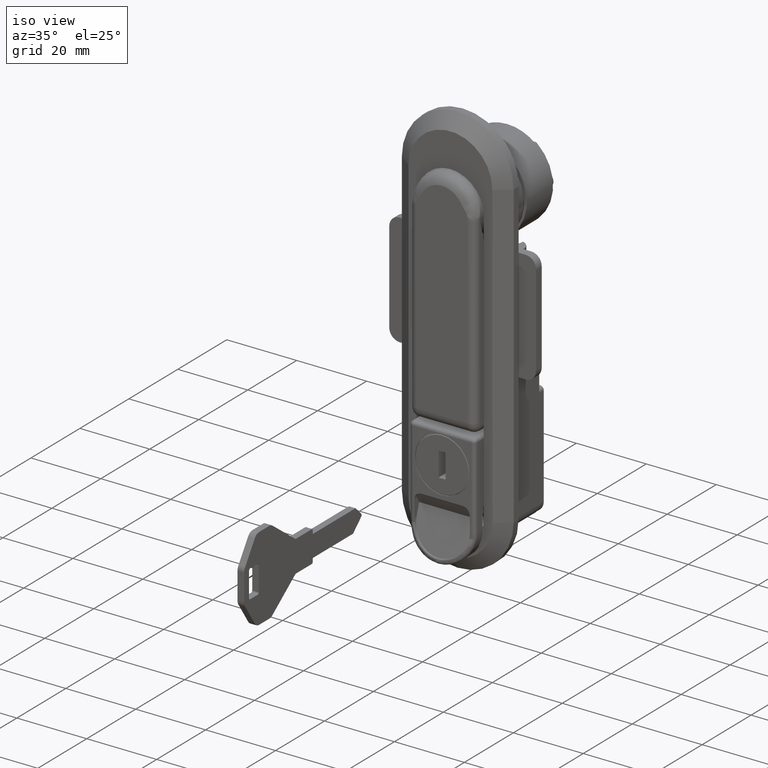
[diagram: clean part render]
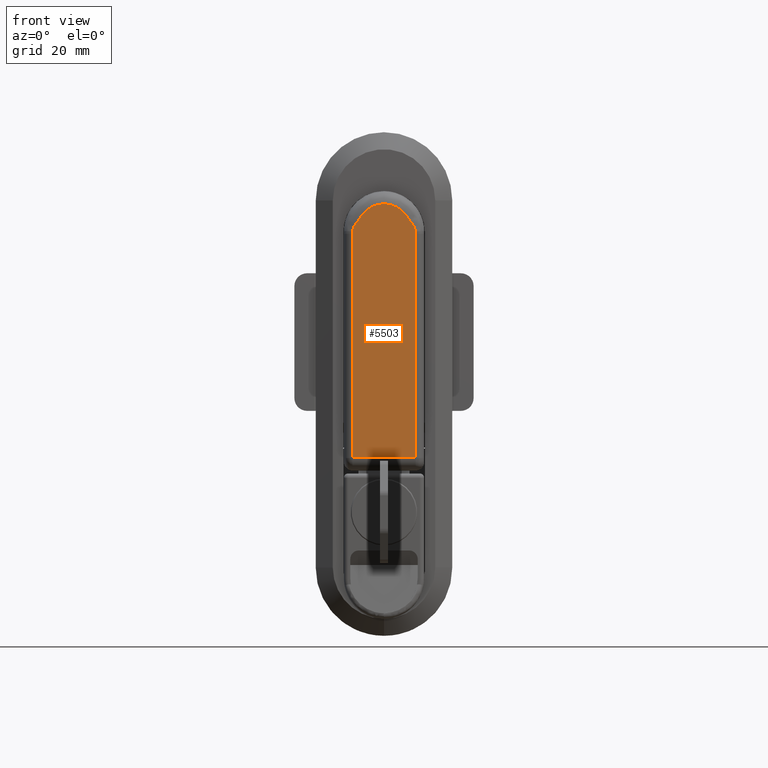
[diagram: tour spotlight — one face highlighted and labeled with its STEP entity id]
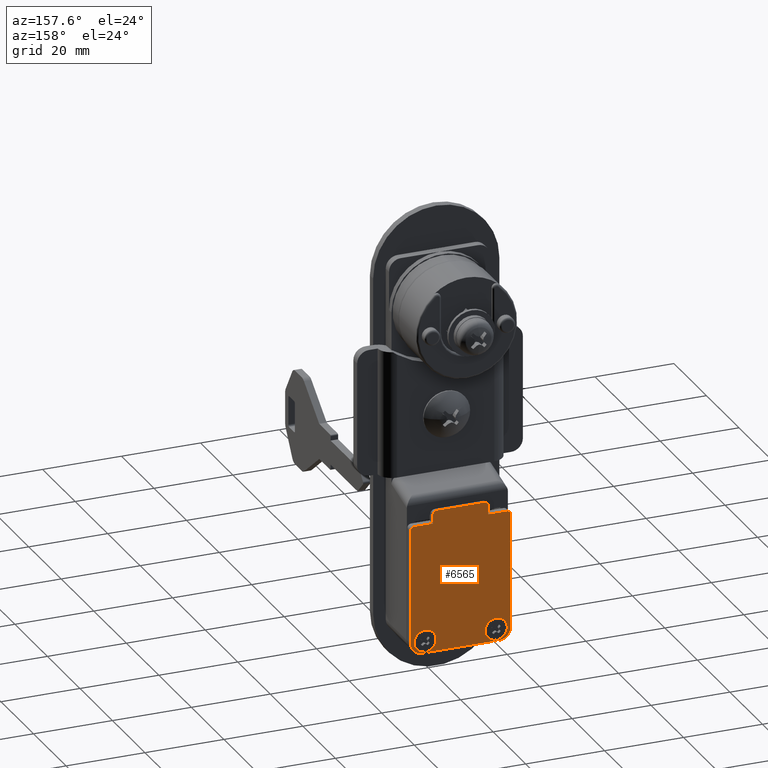
[diagram: tour spotlight — one face highlighted and labeled with its STEP entity id]
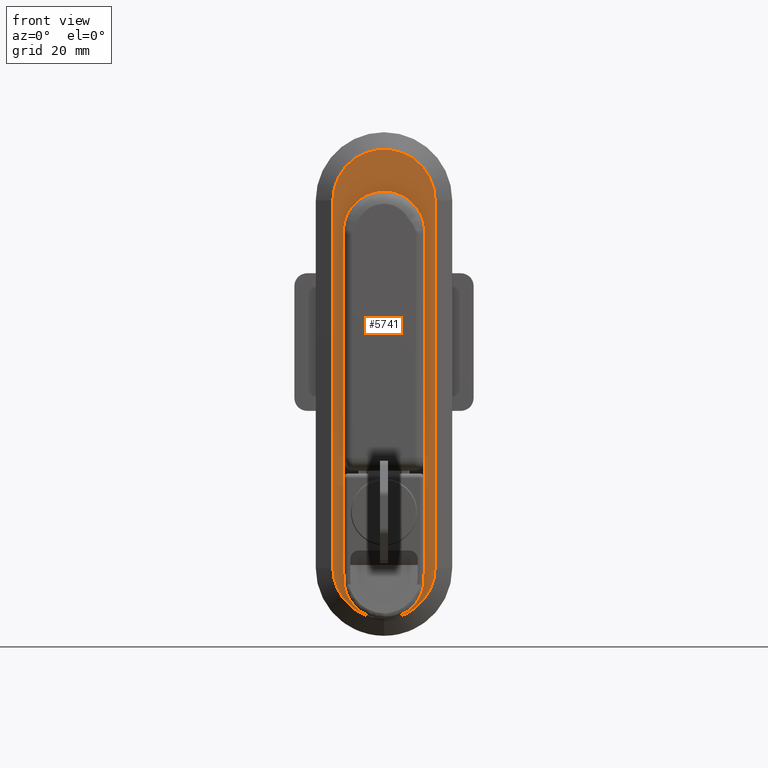
[diagram: tour spotlight — one face highlighted and labeled with its STEP entity id]
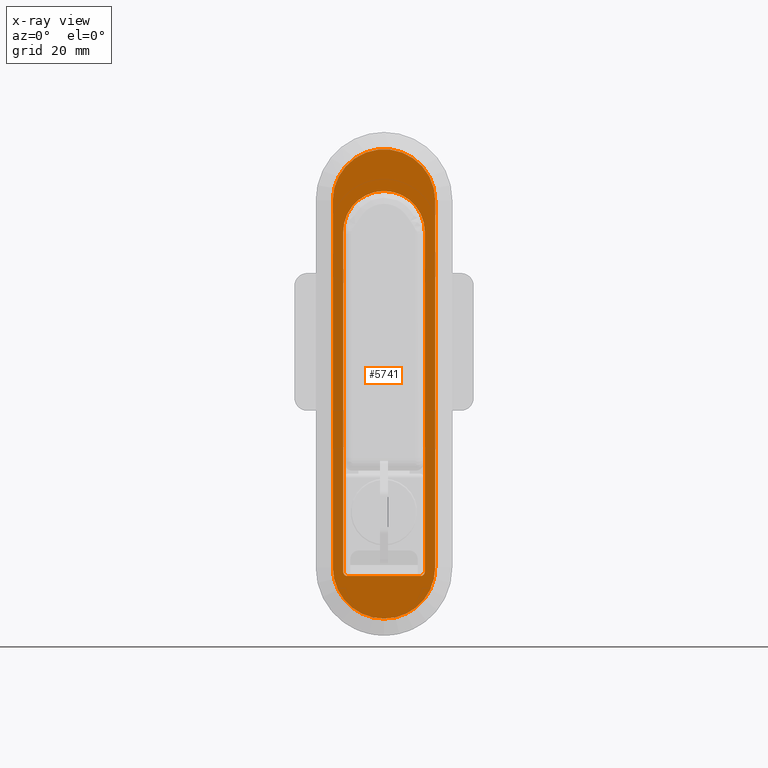
[diagram: x-ray of the same camera — body ghosted, this tour face saturated]
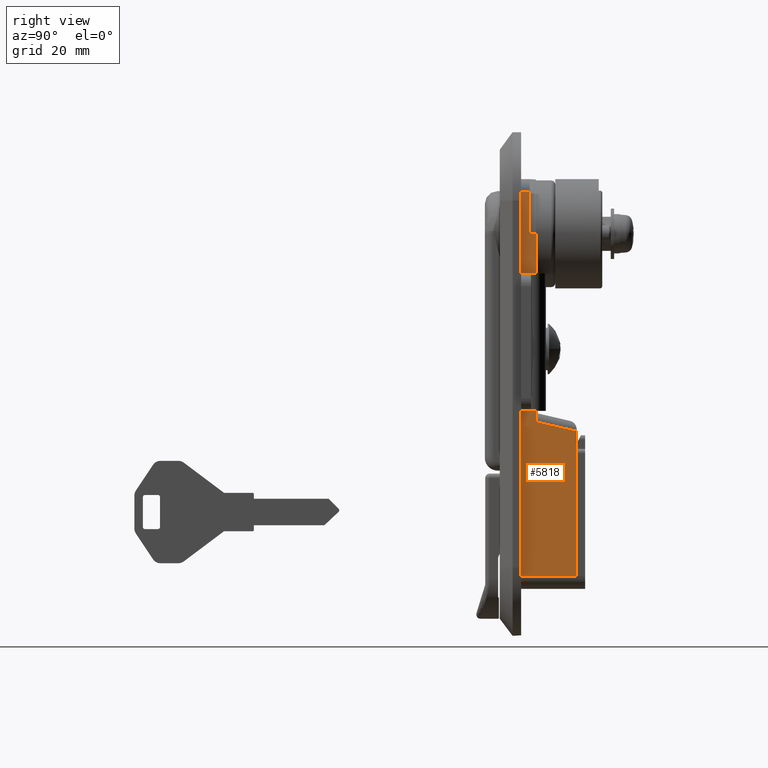
[diagram: tour spotlight — one face highlighted and labeled with its STEP entity id]
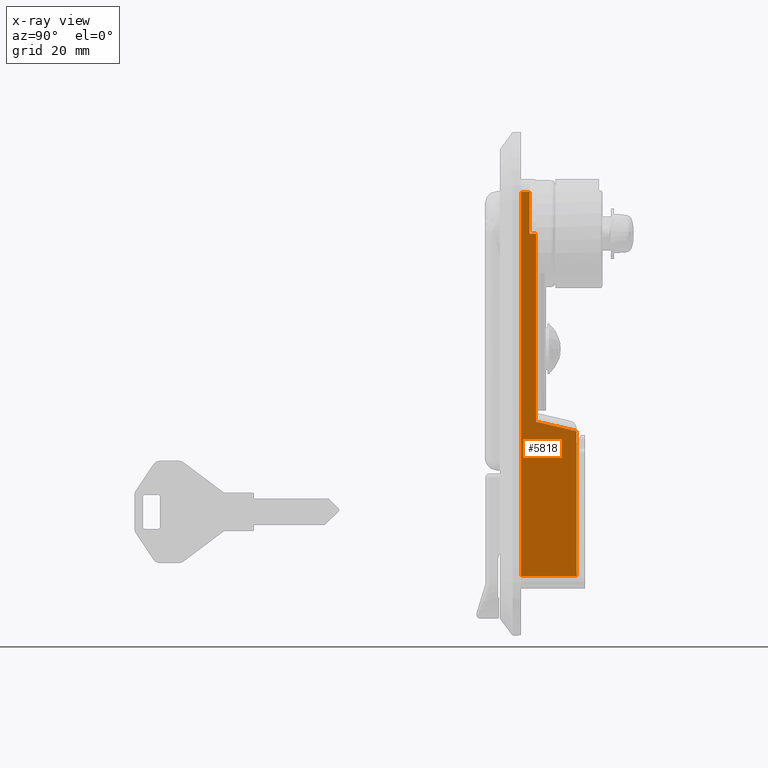
[diagram: x-ray of the same camera — body ghosted, this tour face saturated]
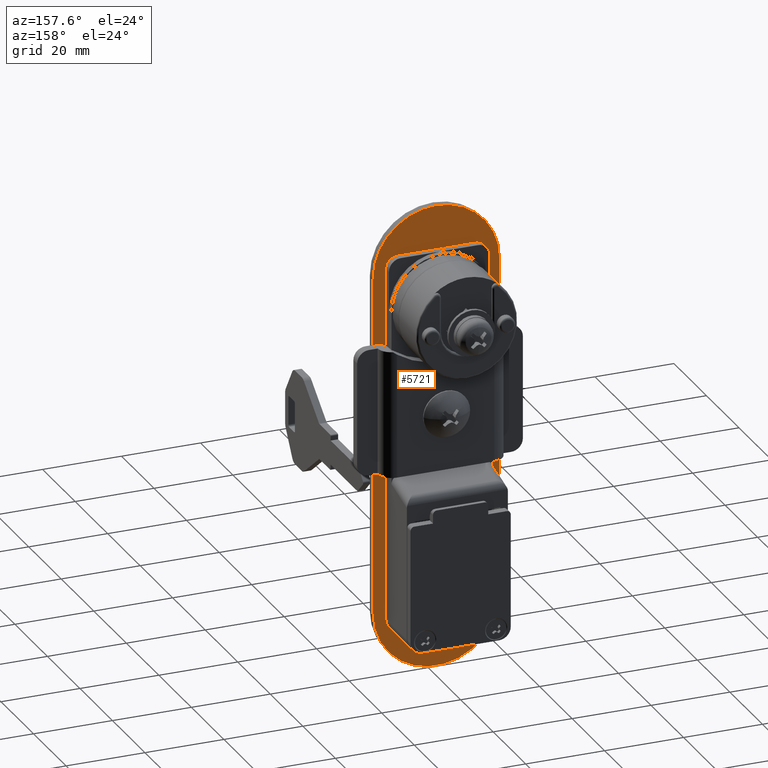
[diagram: tour spotlight — one face highlighted and labeled with its STEP entity id]
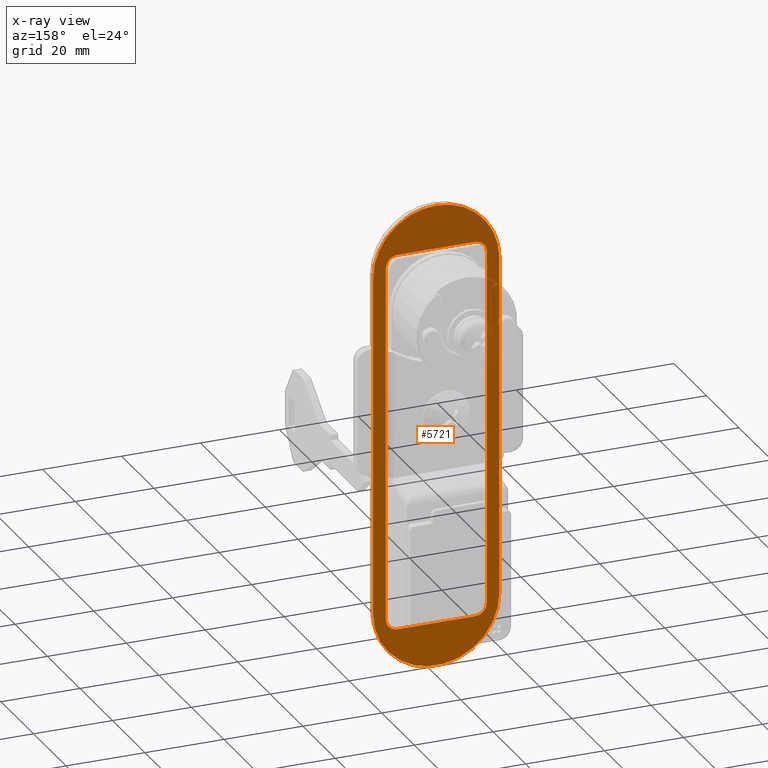
[diagram: x-ray of the same camera — body ghosted, this tour face saturated]
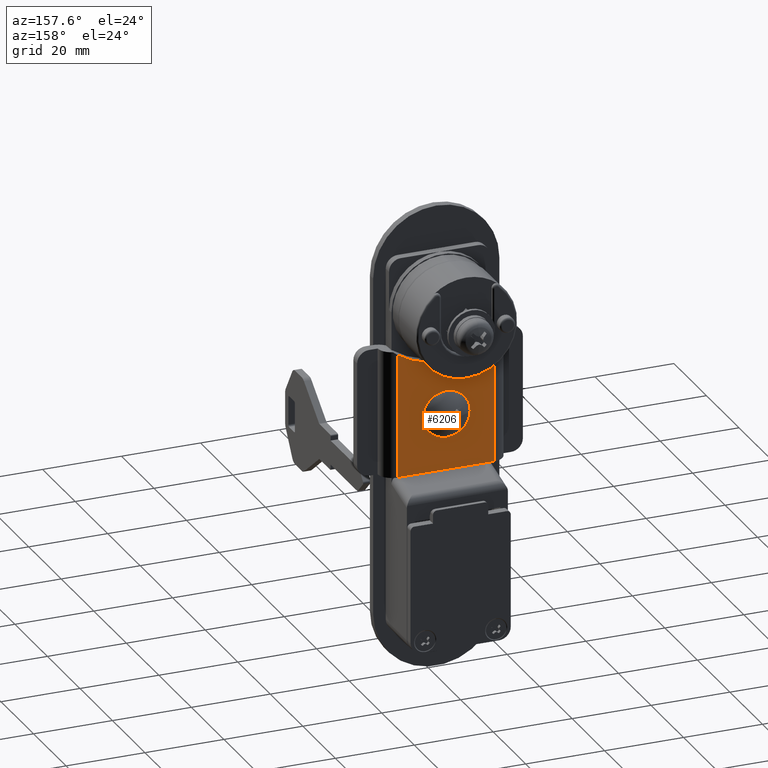
[diagram: tour spotlight — one face highlighted and labeled with its STEP entity id]
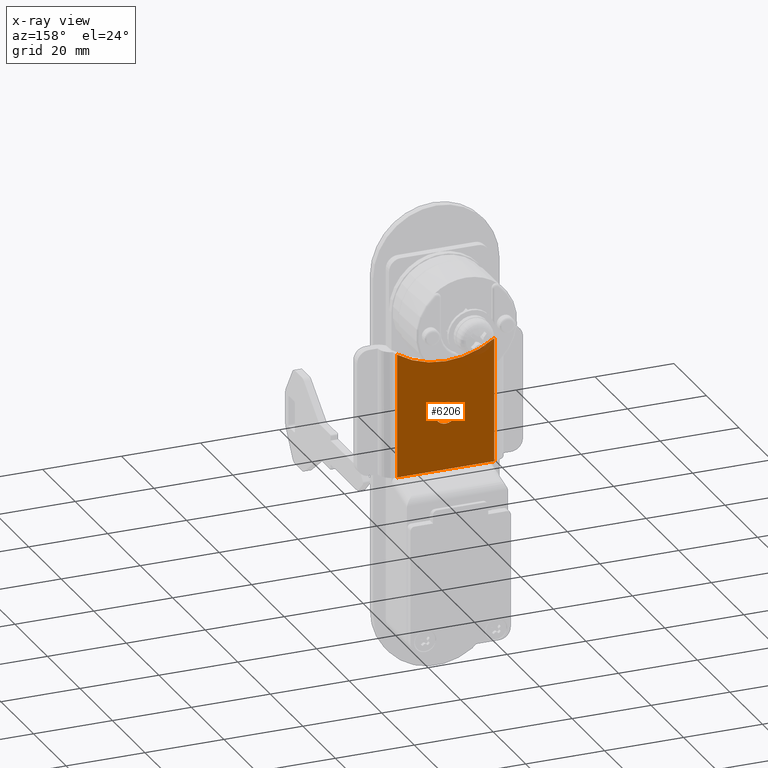
[diagram: x-ray of the same camera — body ghosted, this tour face saturated]
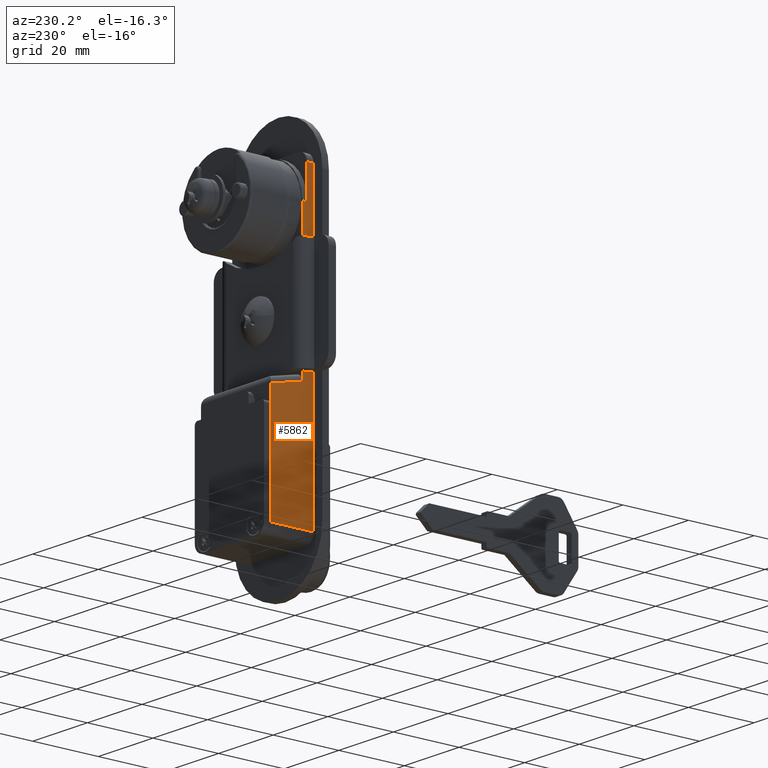
[diagram: tour spotlight — one face highlighted and labeled with its STEP entity id]
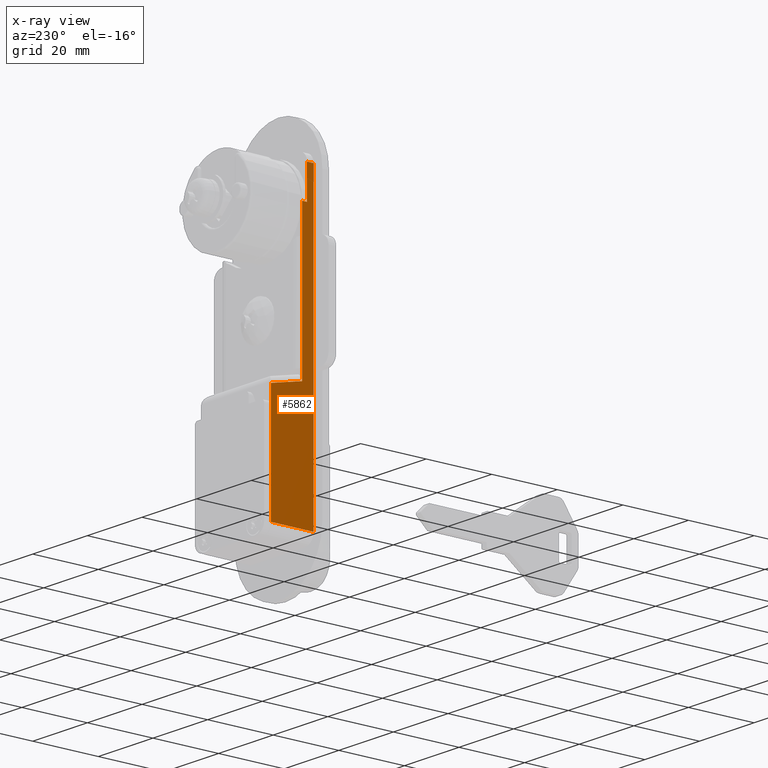
[diagram: x-ray of the same camera — body ghosted, this tour face saturated]
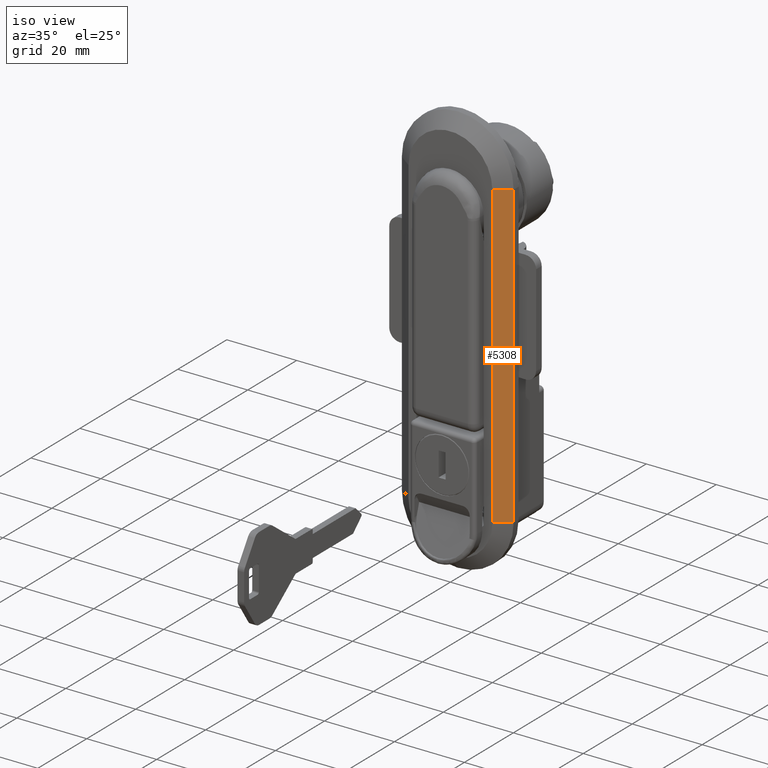
[diagram: tour spotlight — one face highlighted and labeled with its STEP entity id]
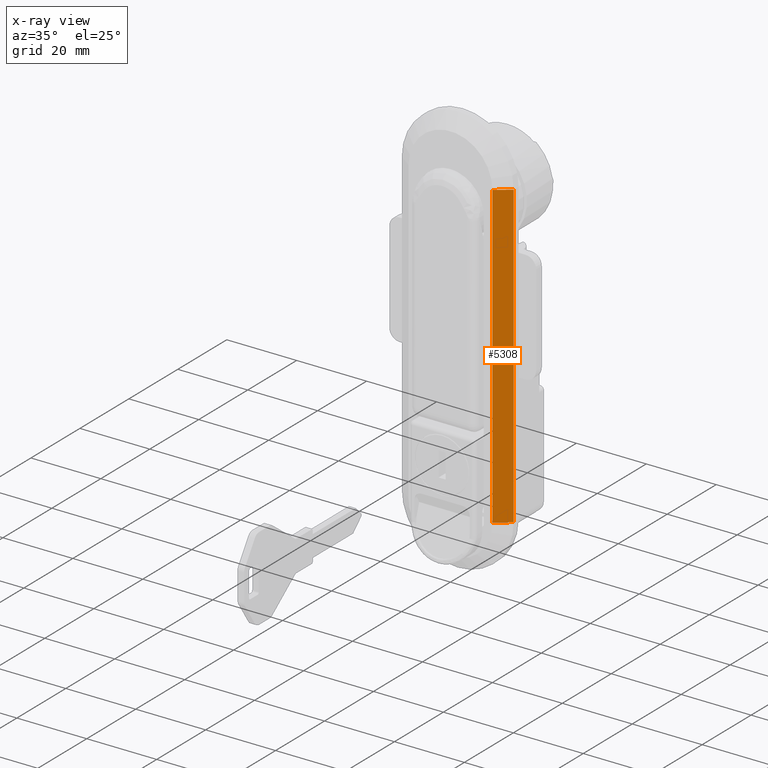
[diagram: x-ray of the same camera — body ghosted, this tour face saturated]
A machine part: a face-by-face anatomy tour. The part has 397 B-rep faces; the first image is the clean iso view, then the 8 largest visible faces are spotlighted one at a time (largest first), each with its STEP entity span.

Face 1 — front view, entity #5503. In plain terms, the highlighted planar face has unit normal (0, -1, 0).
Definition (entity closure, byte-faithful):
#5421 = VERTEX_POINT ( 'NONE', #12411 ) ;
#5422 = ORIENTED_EDGE ( 'NONE', *, *, #5423, .T. ) ;
#5423 = EDGE_CURVE ( 'NONE', #5507, #5424, #12406, .T. ) ;
#5424 = VERTEX_POINT ( 'NONE', #12402 ) ;
#5425 = ORIENTED_EDGE ( 'NONE', *, *, #5482, .F. ) ;
#5482 = EDGE_CURVE ( 'NONE', #5483, #5424, #12536, .T. ) ;
#5483 = VERTEX_POINT ( 'NONE', #12532 ) ;
#5484 = ORIENTED_EDGE ( 'NONE', *, *, #5485, .T. ) ;
#5485 = EDGE_CURVE ( 'NONE', #5483, #5486, #12531, .T. ) ;
#5486 = VERTEX_POINT ( 'NONE', #12527 ) ;
#5487 = ORIENTED_EDGE ( 'NONE', *, *, #5488, .F. ) ;
#5488 = EDGE_CURVE ( 'NONE', #5489, #5486, #12526, .T. ) ;
#5489 = VERTEX_POINT ( 'NONE', #12525 ) ;
#5490 = ORIENTED_EDGE ( 'NONE', *, *, #5491, .F. ) ;
#5491 = EDGE_CURVE ( 'NONE', #5421, #5489, #12582, .T. ) ;
#5503 = ADVANCED_FACE ( 'NONE', ( #12606 ), #12601, .T. ) ;
#5504 = EDGE_LOOP ( 'NONE', ( #5505, #5422, #5425, #5484, #5487, #5490 ) ) ;
#5505 = ORIENTED_EDGE ( 'NONE', *, *, #5506, .F. ) ;
#5506 = EDGE_CURVE ( 'NONE', #5507, #5421, #12596, .T. ) ;
#5507 = VERTEX_POINT ( 'NONE', #12595 ) ;
#12402 = CARTESIAN_POINT ( 'NONE',  ( -3.500000000000000000, 7.400000000000000400, -52.50000000000000000 ) ) ;
#12403 = DIRECTION ( 'NONE',  ( 0.0000000000000000000, 0.0000000000000000000, -1.000000000000000000 ) ) ;
#12404 = VECTOR ( 'NONE', #12403, 1000.000000000000000 ) ;
#12405 = CARTESIAN_POINT ( 'NONE',  ( -3.500000000000000000, 7.400000000000000400, -52.50000000000000000 ) ) ;
#12406 = LINE ( 'NONE', #12405, #12404 ) ;
#12411 = CARTESIAN_POINT ( 'NONE',  ( -3.500000000000000000, 7.299999999999999800, 0.5999999999999999800 ) ) ;
#12524 = CARTESIAN_POINT ( 'NONE',  ( -3.500000000000000000, -7.299999999999999800, 0.5999999999999999800 ) ) ;
#12525 = CARTESIAN_POINT ( 'NONE',  ( -3.500000000000000000, -7.299999999999999800, 0.5999999999999999800 ) ) ;
#12526 = B_SPLINE_CURVE_WITH_KNOTS ( 'NONE', 3,
 ( #12524, #12586, #12585, #12584 ),
 .UNSPECIFIED., .F., .F.,
 ( 4, 4 ),
 ( 0.0000000000000000000, 0.3333333333333329800 ),
 .UNSPECIFIED. ) ;
#12527 = CARTESIAN_POINT ( 'NONE',  ( -3.500000000000000000, -7.400000000000000400, 1.359313052742838000E-015 ) ) ;
#12528 = DIRECTION ( 'NONE',  ( 0.0000000000000000000, 0.0000000000000000000, 1.000000000000000000 ) ) ;
#12529 = VECTOR ( 'NONE', #12528, 1000.000000000000000 ) ;
#12530 = CARTESIAN_POINT ( 'NONE',  ( -3.500000000000000000, -7.400000000000000400, -52.50000000000000000 ) ) ;
#12531 = LINE ( 'NONE', #12530, #12529 ) ;
#12532 = CARTESIAN_POINT ( 'NONE',  ( -3.500000000000000000, -7.400000000000000400, -52.50000000000000000 ) ) ;
#12533 = DIRECTION ( 'NONE',  ( 0.0000000000000000000, 1.000000000000000000, 0.0000000000000000000 ) ) ;
#12534 = VECTOR ( 'NONE', #12533, 1000.000000000000000 ) ;
#12535 = CARTESIAN_POINT ( 'NONE',  ( -3.500000000000000000, -990.6000000000000200, -52.50000000000000000 ) ) ;
#12536 = LINE ( 'NONE', #12535, #12534 ) ;
#12556 = CARTESIAN_POINT ( 'NONE',  ( -3.500000000000000000, -7.299999999999999800, 0.5999999999999999800 ) ) ;
#12557 = CARTESIAN_POINT ( 'NONE',  ( -3.500000000000000000, -7.299999961360380300, 1.593784728837824800 ) ) ;
#12558 = CARTESIAN_POINT ( 'NONE',  ( -3.500000000000000000, -6.604247028688649700, 2.408861487049764400 ) ) ;
#12559 = CARTESIAN_POINT ( 'NONE',  ( -3.500000000000000000, -5.902375201992359900, 3.276520659253709900 ) ) ;
#12560 = CARTESIAN_POINT ( 'NONE',  ( -3.500000000000000000, -5.769535399781200400, 3.446024905262774900 ) ) ;
#12561 = CARTESIAN_POINT ( 'NONE',  ( -3.500000000000000000, -5.536884684436300200, 3.797382537489234700 ) ) ;
#12562 = CARTESIAN_POINT ( 'NONE',  ( -3.500000000000000000, -5.437763876023940000, 3.981506903274350400 ) ) ;
#12563 = CARTESIAN_POINT ( 'NONE',  ( -3.500000000000000000, -5.088688804160950600, 4.503934667427680300 ) ) ;
#12564 = CARTESIAN_POINT ( 'NONE',  ( -3.500000000000000000, -4.821675594912390400, 4.829291204275150100 ) ) ;
#12565 = CARTESIAN_POINT ( 'NONE',  ( -3.500000000000000000, -3.340714618319955000, 6.310252180868910300 ) ) ;
#12566 = CARTESIAN_POINT ( 'NONE',  ( -3.500000000000000000, -1.675516078754155000, 6.999999999998929700 ) ) ;
#12567 = CARTESIAN_POINT ( 'NONE',  ( -3.500000000000000000, 1.675516078754165000, 7.000000000001070300 ) ) ;
#12568 = CARTESIAN_POINT ( 'NONE',  ( -3.500000000000000000, 3.340714618318899800, 6.310252180867849800 ) ) ;
#12569 = CARTESIAN_POINT ( 'NONE',  ( -3.500000000000000000, 4.821675594912660400, 4.829291204275421000 ) ) ;
#12570 = CARTESIAN_POINT ( 'NONE',  ( -3.500000000000000000, 5.088688804160610400, 4.503934667427810000 ) ) ;
#12571 = CARTESIAN_POINT ( 'NONE',  ( -3.500000000000000000, 5.437763876024149600, 3.981506903274269600 ) ) ;
#12572 = CARTESIAN_POINT ( 'NONE',  ( -3.500000000000000000, 5.536884684436419200, 3.797382537489014900 ) ) ;
#12573 = CARTESIAN_POINT ( 'NONE',  ( -3.500000000000000000, 5.769535399781149800, 3.446024905262949900 ) ) ;
#12574 = CARTESIAN_POINT ( 'NONE',  ( -3.500000000000000000, 5.902375201992279100, 3.276520659253475000 ) ) ;
#12575 = CARTESIAN_POINT ( 'NONE',  ( -3.500000000000000000, 6.604247028689099100, 2.408861487050674800 ) ) ;
#12576 = CARTESIAN_POINT ( 'NONE',  ( -3.500000000000000000, 7.299999961357070100, 1.593784728837130100 ) ) ;
#12577 = CARTESIAN_POINT ( 'NONE',  ( -3.500000000000000000, 7.299999999999999800, 0.5999999999999999800 ) ) ;
#12582 = B_SPLINE_CURVE_WITH_KNOTS ( 'NONE', 3,
 ( #12577, #12576, #12575, #12574, #12573, #12572, #12571, #12570, #12569, #12568, #12567, #12566, #12565, #12564, #12563, #12562, #12561, #12560, #12559, #12558, #12557, #12556 ),
 .UNSPECIFIED., .F., .F.,
 ( 4, 2, 2, 2, 2, 2, 2, 2, 2, 2, 4 ),
 ( 0.0000000000000000000, 0.1250000000000002200, 0.1562499999999998900, 0.1875000000000011700, 0.2500000000000003300, 0.5000000000000008900, 0.7499999999999995600, 0.8125000000000007800, 0.8437500000000003300, 0.8749999999999998900, 1.000000000000000000 ),
 .UNSPECIFIED. ) ;
#12584 = CARTESIAN_POINT ( 'NONE',  ( -3.500000000000000000, -7.400000000000000400, 1.359313052742838000E-015 ) ) ;
#12585 = CARTESIAN_POINT ( 'NONE',  ( -3.500000000000000000, -7.349999999999999600, 0.2000000000000000100 ) ) ;
#12586 = CARTESIAN_POINT ( 'NONE',  ( -3.500000000000000000, -7.299999999999999800, 0.4000000000000000200 ) ) ;
#12591 = CARTESIAN_POINT ( 'NONE',  ( -3.500000000000000000, 7.299999999999999800, 0.5999999999999999800 ) ) ;
#12592 = CARTESIAN_POINT ( 'NONE',  ( -3.500000000000000000, 7.299999999999999800, 0.4000000000000000200 ) ) ;
#12593 = CARTESIAN_POINT ( 'NONE',  ( -3.500000000000000000, 7.349999999999999600, 0.2000000000000000100 ) ) ;
#12594 = CARTESIAN_POINT ( 'NONE',  ( -3.500000000000000000, 7.400000000000000400, -1.359313052742844200E-015 ) ) ;
#12595 = CARTESIAN_POINT ( 'NONE',  ( -3.500000000000000000, 7.400000000000000400, -1.359313052742844200E-015 ) ) ;
#12596 = B_SPLINE_CURVE_WITH_KNOTS ( 'NONE', 3,
 ( #12594, #12593, #12592, #12591 ),
 .UNSPECIFIED., .F., .F.,
 ( 4, 4 ),
 ( 0.6666666666666659600, 1.000000000000000000 ),
 .UNSPECIFIED. ) ;
#12597 = DIRECTION ( 'NONE',  ( 0.0000000000000000000, 0.0000000000000000000, 1.000000000000000000 ) ) ;
#12598 = DIRECTION ( 'NONE',  ( -1.000000000000000000, 0.0000000000000000000, 0.0000000000000000000 ) ) ;
#12599 = CARTESIAN_POINT ( 'NONE',  ( -3.500000000000000000, -990.6000000000000200, -52.50000000000000000 ) ) ;
#12600 = AXIS2_PLACEMENT_3D ( 'NONE', #12599, #12598, #12597 ) ;
#12601 = PLANE ( 'NONE',  #12600 ) ;
#12606 = FACE_OUTER_BOUND ( 'NONE', #5504, .T. ) ;

Face 2 — auxiliary view, entity #6565. In plain terms, the highlighted planar face has unit normal (0, 1, 0).
Definition (entity closure, byte-faithful):
#73 = CARTESIAN_POINT ( 'NONE',  ( 20.00000000000000000, 9.000000000000108400, -82.99999999999998600 ) ) ;
#74 = DIRECTION ( 'NONE',  ( 0.0000000000000000000, 0.0000000000000000000, 1.000000000000000000 ) ) ;
#75 = DIRECTION ( 'NONE',  ( 1.000000000000000000, 0.0000000000000000000, 0.0000000000000000000 ) ) ;
#76 = CARTESIAN_POINT ( 'NONE',  ( 20.00000000000000000, 9.000000000000108400, -80.19999999999998900 ) ) ;
#77 = AXIS2_PLACEMENT_3D ( 'NONE', #76, #75, #74 ) ;
#78 = CIRCLE ( 'NONE', #77, 2.799999999999997200 ) ;
#79 = CARTESIAN_POINT ( 'NONE',  ( 20.00000000000000000, 9.000000000000108400, -77.39999999999999100 ) ) ;
#192 = AXIS2_PLACEMENT_3D ( 'NONE', #255, #254, #253 ) ;
#193 = CIRCLE ( 'NONE', #192, 2.799999999999997200 ) ;
#194 = CARTESIAN_POINT ( 'NONE',  ( 20.00000000000000000, -9.000000000000108400, -77.39999999999999100 ) ) ;
#252 = CARTESIAN_POINT ( 'NONE',  ( 20.00000000000000000, -9.000000000000108400, -82.99999999999998600 ) ) ;
#253 = DIRECTION ( 'NONE',  ( 0.0000000000000000000, 0.0000000000000000000, 1.000000000000000000 ) ) ;
#254 = DIRECTION ( 'NONE',  ( -1.000000000000000000, 0.0000000000000000000, 0.0000000000000000000 ) ) ;
#255 = CARTESIAN_POINT ( 'NONE',  ( 20.00000000000000000, -9.000000000000108400, -80.19999999999998900 ) ) ;
#324 = CARTESIAN_POINT ( 'NONE',  ( 20.00000000000000000, -7.000000000000110100, -48.20000000000000300 ) ) ;
#325 = CARTESIAN_POINT ( 'NONE',  ( 20.00000000000000000, -6.000000000000000000, -47.19999999999999600 ) ) ;
#326 = DIRECTION ( 'NONE',  ( 0.0000000000000000000, 0.0000000000000000000, -1.000000000000000000 ) ) ;
#327 = DIRECTION ( 'NONE',  ( 1.000000000000000000, 0.0000000000000000000, 0.0000000000000000000 ) ) ;
#328 = CARTESIAN_POINT ( 'NONE',  ( 20.00000000000000000, -6.000000000000000000, -48.20000000000000300 ) ) ;
#329 = AXIS2_PLACEMENT_3D ( 'NONE', #328, #327, #326 ) ;
#330 = CIRCLE ( 'NONE', #329, 1.000000000000000900 ) ;
#331 = DIRECTION ( 'NONE',  ( 0.0000000000000000000, 0.0000000000000000000, 1.000000000000000000 ) ) ;
#332 = DIRECTION ( 'NONE',  ( -1.000000000000000000, 0.0000000000000000000, 0.0000000000000000000 ) ) ;
#333 = CARTESIAN_POINT ( 'NONE',  ( 20.00000000000000000, -9.000000000000108400, -80.19999999999998900 ) ) ;
#334 = AXIS2_PLACEMENT_3D ( 'NONE', #333, #332, #331 ) ;
#335 = CIRCLE ( 'NONE', #334, 2.799999999999997200 ) ;
#336 = DIRECTION ( 'NONE',  ( 0.0000000000000000000, 1.000000000000000000, 0.0000000000000000000 ) ) ;
#337 = DIRECTION ( 'NONE',  ( 1.000000000000000000, 0.0000000000000000000, 0.0000000000000000000 ) ) ;
#338 = CARTESIAN_POINT ( 'NONE',  ( 20.00000000000000000, 0.0000000000000000000, 0.0000000000000000000 ) ) ;
#339 = AXIS2_PLACEMENT_3D ( 'NONE', #338, #337, #336 ) ;
#340 = PLANE ( 'NONE',  #339 ) ;
#341 = FACE_BOUND ( 'NONE', #6614, .T. ) ;
#342 = FACE_OUTER_BOUND ( 'NONE', #6570, .T. ) ;
#343 = FACE_BOUND ( 'NONE', #6566, .T. ) ;
#384 = LINE ( 'NONE', #447, #446 ) ;
#385 = CARTESIAN_POINT ( 'NONE',  ( 20.00000000000000000, 5.999999999999770000, -47.19999999999999600 ) ) ;
#386 = DIRECTION ( 'NONE',  ( 0.0000000000000000000, 0.0000000000000000000, -1.000000000000000000 ) ) ;
#387 = DIRECTION ( 'NONE',  ( 1.000000000000000000, 0.0000000000000000000, 0.0000000000000000000 ) ) ;
#388 = CARTESIAN_POINT ( 'NONE',  ( 20.00000000000000000, 5.999999999999770000, -48.20000000000000300 ) ) ;
#389 = AXIS2_PLACEMENT_3D ( 'NONE', #388, #387, #386 ) ;
#390 = CIRCLE ( 'NONE', #389, 1.000000000000000900 ) ;
#416 = CIRCLE ( 'NONE', #479, 1.000000000000000900 ) ;
#417 = CARTESIAN_POINT ( 'NONE',  ( 20.00000000000000000, 12.69999999999999900, -51.39999999999999900 ) ) ;
#418 = DIRECTION ( 'NONE',  ( 0.0000000000000000000, 0.0000000000000000000, 1.000000000000000000 ) ) ;
#419 = VECTOR ( 'NONE', #418, 1000.000000000000000 ) ;
#420 = CARTESIAN_POINT ( 'NONE',  ( 20.00000000000000000, 12.69999999999999900, -80.19999999999998900 ) ) ;
#421 = LINE ( 'NONE', #420, #419 ) ;
#422 = CARTESIAN_POINT ( 'NONE',  ( 20.00000000000000000, 12.69999999999982200, -80.19999999999998900 ) ) ;
#423 = DIRECTION ( 'NONE',  ( 0.0000000000000000000, 0.0000000000000000000, -1.000000000000000000 ) ) ;
#424 = DIRECTION ( 'NONE',  ( 1.000000000000000000, 0.0000000000000000000, 0.0000000000000000000 ) ) ;
#425 = CARTESIAN_POINT ( 'NONE',  ( 20.00000000000000000, 9.699999999999819900, -80.19999999999998900 ) ) ;
#426 = AXIS2_PLACEMENT_3D ( 'NONE', #425, #424, #423 ) ;
#427 = CIRCLE ( 'NONE', #426, 3.000000000000002700 ) ;
#428 = CARTESIAN_POINT ( 'NONE',  ( 20.00000000000000000, 9.699999999999819900, -83.20000000000000300 ) ) ;
#429 = DIRECTION ( 'NONE',  ( 0.0000000000000000000, 1.000000000000000000, 0.0000000000000000000 ) ) ;
#430 = VECTOR ( 'NONE', #429, 1000.000000000000000 ) ;
#431 = CARTESIAN_POINT ( 'NONE',  ( 20.00000000000000000, -9.700000000000001100, -83.20000000000000300 ) ) ;
#432 = LINE ( 'NONE', #431, #430 ) ;
#440 = DIRECTION ( 'NONE',  ( 0.0000000000000000000, 0.0000000000000000000, 1.000000000000000000 ) ) ;
#441 = DIRECTION ( 'NONE',  ( 1.000000000000000000, 0.0000000000000000000, 0.0000000000000000000 ) ) ;
#442 = CARTESIAN_POINT ( 'NONE',  ( 20.00000000000000000, 9.000000000000108400, -80.19999999999998900 ) ) ;
#443 = AXIS2_PLACEMENT_3D ( 'NONE', #442, #441, #440 ) ;
#444 = CIRCLE ( 'NONE', #443, 2.799999999999997200 ) ;
#445 = DIRECTION ( 'NONE',  ( 0.0000000000000000000, -1.000000000000000000, 0.0000000000000000000 ) ) ;
#446 = VECTOR ( 'NONE', #445, 1000.000000000000000 ) ;
#447 = CARTESIAN_POINT ( 'NONE',  ( 20.00000000000000000, 5.999999999999770000, -47.19999999999999600 ) ) ;
#448 = CIRCLE ( 'NONE', #514, 3.000000000000002700 ) ;
#449 = CARTESIAN_POINT ( 'NONE',  ( 20.00000000000000000, -12.69999999999999900, -80.19999999999998900 ) ) ;
#450 = DIRECTION ( 'NONE',  ( 0.0000000000000000000, 0.0000000000000000000, -1.000000000000000000 ) ) ;
#451 = VECTOR ( 'NONE', #450, 1000.000000000000000 ) ;
#452 = CARTESIAN_POINT ( 'NONE',  ( 20.00000000000000000, -12.69999999999999900, -51.39999999999999900 ) ) ;
#453 = LINE ( 'NONE', #452, #451 ) ;
#454 = CARTESIAN_POINT ( 'NONE',  ( 20.00000000000000000, -12.69999999999999900, -51.39999999999999900 ) ) ;
#455 = DIRECTION ( 'NONE',  ( 0.0000000000000000000, 0.0000000000000000000, -1.000000000000000000 ) ) ;
#456 = DIRECTION ( 'NONE',  ( 1.000000000000000000, 0.0000000000000000000, 0.0000000000000000000 ) ) ;
#457 = CARTESIAN_POINT ( 'NONE',  ( 20.00000000000000000, -11.70000000000000100, -51.39999999999999900 ) ) ;
#458 = AXIS2_PLACEMENT_3D ( 'NONE', #457, #456, #455 ) ;
#459 = CIRCLE ( 'NONE', #458, 1.000000000000000900 ) ;
#460 = CARTESIAN_POINT ( 'NONE',  ( 20.00000000000000000, -11.70000000000000100, -50.39999999999999900 ) ) ;
#461 = DIRECTION ( 'NONE',  ( 0.0000000000000000000, -1.000000000000000000, 0.0000000000000000000 ) ) ;
#462 = VECTOR ( 'NONE', #461, 1000.000000000000000 ) ;
#463 = CARTESIAN_POINT ( 'NONE',  ( 20.00000000000000000, -7.000000000000110100, -50.39999999999999900 ) ) ;
#464 = LINE ( 'NONE', #463, #462 ) ;
#465 = CARTESIAN_POINT ( 'NONE',  ( 20.00000000000000000, -7.000000000000110100, -50.39999999999999900 ) ) ;
#466 = DIRECTION ( 'NONE',  ( 0.0000000000000000000, 0.0000000000000000000, -1.000000000000000000 ) ) ;
#467 = VECTOR ( 'NONE', #466, 1000.000000000000000 ) ;
#468 = CARTESIAN_POINT ( 'NONE',  ( 20.00000000000000000, -7.000000000000110100, -48.20000000000000300 ) ) ;
#469 = LINE ( 'NONE', #468, #467 ) ;
#470 = CARTESIAN_POINT ( 'NONE',  ( 20.00000000000000000, 7.000000000000000000, -50.39999999999999900 ) ) ;
#471 = DIRECTION ( 'NONE',  ( 0.0000000000000000000, -1.000000000000000000, 0.0000000000000000000 ) ) ;
#472 = VECTOR ( 'NONE', #471, 1000.000000000000000 ) ;
#473 = CARTESIAN_POINT ( 'NONE',  ( 20.00000000000000000, 11.69999999999987800, -50.39999999999999900 ) ) ;
#474 = LINE ( 'NONE', #473, #472 ) ;
#475 = CARTESIAN_POINT ( 'NONE',  ( 20.00000000000000000, 11.69999999999987800, -50.39999999999999900 ) ) ;
#476 = DIRECTION ( 'NONE',  ( 0.0000000000000000000, 0.0000000000000000000, -1.000000000000000000 ) ) ;
#477 = DIRECTION ( 'NONE',  ( 1.000000000000000000, 0.0000000000000000000, 0.0000000000000000000 ) ) ;
#478 = CARTESIAN_POINT ( 'NONE',  ( 20.00000000000000000, 11.69999999999987800, -51.39999999999999900 ) ) ;
#479 = AXIS2_PLACEMENT_3D ( 'NONE', #478, #477, #476 ) ;
#510 = CARTESIAN_POINT ( 'NONE',  ( 20.00000000000000000, -9.700000000000001100, -83.20000000000000300 ) ) ;
#511 = DIRECTION ( 'NONE',  ( 0.0000000000000000000, 0.0000000000000000000, -1.000000000000000000 ) ) ;
#512 = DIRECTION ( 'NONE',  ( 1.000000000000000000, 0.0000000000000000000, 0.0000000000000000000 ) ) ;
#513 = CARTESIAN_POINT ( 'NONE',  ( 20.00000000000000000, -9.700000000000001100, -80.19999999999998900 ) ) ;
#514 = AXIS2_PLACEMENT_3D ( 'NONE', #513, #512, #511 ) ;
#555 = CARTESIAN_POINT ( 'NONE',  ( 20.00000000000000000, 7.000000000000000000, -48.20000000000000300 ) ) ;
#556 = DIRECTION ( 'NONE',  ( 0.0000000000000000000, 0.0000000000000000000, 1.000000000000000000 ) ) ;
#557 = VECTOR ( 'NONE', #556, 1000.000000000000000 ) ;
#558 = CARTESIAN_POINT ( 'NONE',  ( 20.00000000000000000, 7.000000000000000000, -50.39999999999999900 ) ) ;
#559 = LINE ( 'NONE', #558, #557 ) ;
#6445 = VERTEX_POINT ( 'NONE', #79 ) ;
#6447 = EDGE_CURVE ( 'NONE', #6445, #6448, #78, .T. ) ;
#6448 = VERTEX_POINT ( 'NONE', #73 ) ;
#6504 = VERTEX_POINT ( 'NONE', #194 ) ;
#6506 = EDGE_CURVE ( 'NONE', #6507, #6504, #193, .T. ) ;
#6507 = VERTEX_POINT ( 'NONE', #252 ) ;
#6565 = ADVANCED_FACE ( 'NONE', ( #343, #342, #341 ), #340, .T. ) ;
#6566 = EDGE_LOOP ( 'NONE', ( #6567, #6568 ) ) ;
#6567 = ORIENTED_EDGE ( 'NONE', *, *, #6506, .T. ) ;
#6568 = ORIENTED_EDGE ( 'NONE', *, *, #6569, .T. ) ;
#6569 = EDGE_CURVE ( 'NONE', #6504, #6507, #335, .T. ) ;
#6570 = EDGE_LOOP ( 'NONE', ( #6571, #6635, #6638, #6641, #6644, #6647, #6620, #6623, #6626, #6629, #6632, #6697, #6700, #6612 ) ) ;
#6571 = ORIENTED_EDGE ( 'NONE', *, *, #6572, .T. ) ;
#6572 = EDGE_CURVE ( 'NONE', #6573, #6574, #330, .T. ) ;
#6573 = VERTEX_POINT ( 'NONE', #325 ) ;
#6574 = VERTEX_POINT ( 'NONE', #324 ) ;
#6610 = EDGE_CURVE ( 'NONE', #6699, #6611, #390, .T. ) ;
#6611 = VERTEX_POINT ( 'NONE', #385 ) ;
#6612 = ORIENTED_EDGE ( 'NONE', *, *, #6613, .T. ) ;
#6613 = EDGE_CURVE ( 'NONE', #6611, #6573, #384, .T. ) ;
#6614 = EDGE_LOOP ( 'NONE', ( #6615, #6617 ) ) ;
#6615 = ORIENTED_EDGE ( 'NONE', *, *, #6616, .F. ) ;
#6616 = EDGE_CURVE ( 'NONE', #6448, #6445, #444, .T. ) ;
#6617 = ORIENTED_EDGE ( 'NONE', *, *, #6447, .F. ) ;
#6620 = ORIENTED_EDGE ( 'NONE', *, *, #6621, .T. ) ;
#6621 = EDGE_CURVE ( 'NONE', #6649, #6622, #432, .T. ) ;
#6622 = VERTEX_POINT ( 'NONE', #428 ) ;
#6623 = ORIENTED_EDGE ( 'NONE', *, *, #6624, .T. ) ;
#6624 = EDGE_CURVE ( 'NONE', #6622, #6625, #427, .T. ) ;
#6625 = VERTEX_POINT ( 'NONE', #422 ) ;
#6626 = ORIENTED_EDGE ( 'NONE', *, *, #6627, .T. ) ;
#6627 = EDGE_CURVE ( 'NONE', #6625, #6628, #421, .T. ) ;
#6628 = VERTEX_POINT ( 'NONE', #417 ) ;
#6629 = ORIENTED_EDGE ( 'NONE', *, *, #6630, .T. ) ;
#6630 = EDGE_CURVE ( 'NONE', #6628, #6631, #416, .T. ) ;
#6631 = VERTEX_POINT ( 'NONE', #475 ) ;
#6632 = ORIENTED_EDGE ( 'NONE', *, *, #6633, .T. ) ;
#6633 = EDGE_CURVE ( 'NONE', #6631, #6634, #474, .T. ) ;
#6634 = VERTEX_POINT ( 'NONE', #470 ) ;
#6635 = ORIENTED_EDGE ( 'NONE', *, *, #6636, .T. ) ;
#6636 = EDGE_CURVE ( 'NONE', #6574, #6637, #469, .T. ) ;
#6637 = VERTEX_POINT ( 'NONE', #465 ) ;
#6638 = ORIENTED_EDGE ( 'NONE', *, *, #6639, .T. ) ;
#6639 = EDGE_CURVE ( 'NONE', #6637, #6640, #464, .T. ) ;
#6640 = VERTEX_POINT ( 'NONE', #460 ) ;
#6641 = ORIENTED_EDGE ( 'NONE', *, *, #6642, .T. ) ;
#6642 = EDGE_CURVE ( 'NONE', #6640, #6643, #459, .T. ) ;
#6643 = VERTEX_POINT ( 'NONE', #454 ) ;
#6644 = ORIENTED_EDGE ( 'NONE', *, *, #6645, .T. ) ;
#6645 = EDGE_CURVE ( 'NONE', #6643, #6646, #453, .T. ) ;
#6646 = VERTEX_POINT ( 'NONE', #449 ) ;
#6647 = ORIENTED_EDGE ( 'NONE', *, *, #6648, .T. ) ;
#6648 = EDGE_CURVE ( 'NONE', #6646, #6649, #448, .T. ) ;
#6649 = VERTEX_POINT ( 'NONE', #510 ) ;
#6697 = ORIENTED_EDGE ( 'NONE', *, *, #6698, .T. ) ;
#6698 = EDGE_CURVE ( 'NONE', #6634, #6699, #559, .T. ) ;
#6699 = VERTEX_POINT ( 'NONE', #555 ) ;
#6700 = ORIENTED_EDGE ( 'NONE', *, *, #6610, .T. ) ;

Face 3 — front view, entity #5741. An x-ray twin of the same camera follows (body ghosted, this face saturated) — the face is partly hidden behind the body. In plain terms, the highlighted planar face has unit normal (0, 1, 0).
Definition (entity closure, byte-faithful):
#4441 = VERTEX_POINT ( 'NONE', #8123 ) ;
#5055 = EDGE_CURVE ( 'NONE', #5059, #4441, #11763, .T. ) ;
#5059 = VERTEX_POINT ( 'NONE', #11754 ) ;
#5083 = EDGE_CURVE ( 'NONE', #5085, #5169, #11769, .T. ) ;
#5085 = VERTEX_POINT ( 'NONE', #11764 ) ;
#5169 = VERTEX_POINT ( 'NONE', #11963 ) ;
#5178 = EDGE_CURVE ( 'NONE', #5246, #5244, #11951, .T. ) ;
#5203 = EDGE_CURVE ( 'NONE', #4441, #5205, #12035, .T. ) ;
#5205 = VERTEX_POINT ( 'NONE', #12031 ) ;
#5244 = VERTEX_POINT ( 'NONE', #12097 ) ;
#5246 = VERTEX_POINT ( 'NONE', #12096 ) ;
#5310 = EDGE_CURVE ( 'NONE', #5169, #5319, #12228, .T. ) ;
#5319 = VERTEX_POINT ( 'NONE', #12209 ) ;
#5347 = EDGE_CURVE ( 'NONE', #5372, #5085, #12275, .T. ) ;
#5352 = EDGE_CURVE ( 'NONE', #5367, #5372, #12321, .T. ) ;
#5358 = EDGE_CURVE ( 'NONE', #5319, #5367, #12307, .T. ) ;
#5367 = VERTEX_POINT ( 'NONE', #12292 ) ;
#5372 = VERTEX_POINT ( 'NONE', #12340 ) ;
#5737 = EDGE_CURVE ( 'NONE', #5244, #5059, #13063, .T. ) ;
#5738 = ORIENTED_EDGE ( 'NONE', *, *, #5178, .F. ) ;
#5739 = EDGE_LOOP ( 'NONE', ( #5740, #5738, #5770, #5773, #5776, #5778, #5742 ) ) ;
#5740 = ORIENTED_EDGE ( 'NONE', *, *, #5737, .F. ) ;
#5741 = ADVANCED_FACE ( 'NONE', ( #13064, #13058 ), #13057, .F. ) ;
#5742 = ORIENTED_EDGE ( 'NONE', *, *, #5055, .F. ) ;
#5743 = ORIENTED_EDGE ( 'NONE', *, *, #5310, .T. ) ;
#5744 = ORIENTED_EDGE ( 'NONE', *, *, #5358, .T. ) ;
#5745 = ORIENTED_EDGE ( 'NONE', *, *, #5352, .T. ) ;
#5746 = ORIENTED_EDGE ( 'NONE', *, *, #5347, .T. ) ;
#5747 = ORIENTED_EDGE ( 'NONE', *, *, #5083, .T. ) ;
#5770 = ORIENTED_EDGE ( 'NONE', *, *, #5771, .F. ) ;
#5771 = EDGE_CURVE ( 'NONE', #5772, #5246, #13089, .T. ) ;
#5772 = VERTEX_POINT ( 'NONE', #13084 ) ;
#5773 = ORIENTED_EDGE ( 'NONE', *, *, #5774, .F. ) ;
#5774 = EDGE_CURVE ( 'NONE', #5775, #5772, #13083, .T. ) ;
#5775 = VERTEX_POINT ( 'NONE', #13079 ) ;
#5776 = ORIENTED_EDGE ( 'NONE', *, *, #5777, .F. ) ;
#5777 = EDGE_CURVE ( 'NONE', #5205, #5775, #13077, .T. ) ;
#5778 = ORIENTED_EDGE ( 'NONE', *, *, #5203, .F. ) ;
#5779 = EDGE_LOOP ( 'NONE', ( #5743, #5744, #5745, #5746, #5747 ) ) ;
#8123 = CARTESIAN_POINT ( 'NONE',  ( 0.0000000000000000000, 9.549999999999998900, 0.4499999999999014800 ) ) ;
#11754 = CARTESIAN_POINT ( 'NONE',  ( 0.0000000000000000000, 0.0000000000000000000, 9.999999999999902300 ) ) ;
#11759 = DIRECTION ( 'NONE',  ( 0.0000000000000000000, 0.0000000000000000000, -1.000000000000000000 ) ) ;
#11760 = DIRECTION ( 'NONE',  ( -1.000000000000000000, 0.0000000000000000000, 0.0000000000000000000 ) ) ;
#11761 = CARTESIAN_POINT ( 'NONE',  ( 0.0000000000000000000, 0.0000000000000000000, 0.4499999999999034800 ) ) ;
#11762 = AXIS2_PLACEMENT_3D ( 'NONE', #11761, #11760, #11759 ) ;
#11763 = CIRCLE ( 'NONE', #11762, 9.549999999999998900 ) ;
#11764 = CARTESIAN_POINT ( 'NONE',  ( 0.0000000000000000000, -2.842170943040399500E-014, -90.20001488677307600 ) ) ;
#11765 = DIRECTION ( 'NONE',  ( 0.0000000000000000000, 0.0000000000000000000, -1.000000000000000000 ) ) ;
#11766 = DIRECTION ( 'NONE',  ( -1.000000000000000000, 0.0000000000000000000, 0.0000000000000000000 ) ) ;
#11767 = CARTESIAN_POINT ( 'NONE',  ( 0.0000000000000000000, -2.842170943040399500E-014, -78.20000000000000300 ) ) ;
#11768 = AXIS2_PLACEMENT_3D ( 'NONE', #11767, #11766, #11765 ) ;
#11769 = CIRCLE ( 'NONE', #11768, 12.00001488677307500 ) ;
#11948 = DIRECTION ( 'NONE',  ( 0.0000000000000000000, 1.960139520877744800E-016, 1.000000000000000000 ) ) ;
#11949 = VECTOR ( 'NONE', #11948, 1000.000000000000000 ) ;
#11950 = CARTESIAN_POINT ( 'NONE',  ( 0.0000000000000000000, -9.549999999999998900, 1.871933242438245000E-015 ) ) ;
#11951 = LINE ( 'NONE', #11950, #11949 ) ;
#11963 = CARTESIAN_POINT ( 'NONE',  ( 0.0000000000000000000, -12.00001488677308000, -78.20000000000000300 ) ) ;
#12031 = CARTESIAN_POINT ( 'NONE',  ( 0.0000000000000000000, 9.549999999999998900, -79.20000000000000300 ) ) ;
#12032 = DIRECTION ( 'NONE',  ( 0.0000000000000000000, 0.0000000000000000000, -1.000000000000000000 ) ) ;
#12033 = VECTOR ( 'NONE', #12032, 1000.000000000000000 ) ;
#12034 = CARTESIAN_POINT ( 'NONE',  ( 0.0000000000000000000, 9.549999999999998900, 0.0000000000000000000 ) ) ;
#12035 = LINE ( 'NONE', #12034, #12033 ) ;
#12096 = CARTESIAN_POINT ( 'NONE',  ( 0.0000000000000000000, -9.549999999999998900, -79.20000000000000300 ) ) ;
#12097 = CARTESIAN_POINT ( 'NONE',  ( 0.0000000000000000000, -9.549999999999998900, 0.4499999999999050300 ) ) ;
#12209 = CARTESIAN_POINT ( 'NONE',  ( 0.0000000000000000000, -12.00001488677305900, 7.799999999999999800 ) ) ;
#12225 = DIRECTION ( 'NONE',  ( 0.0000000000000000000, 1.613696256722609700E-016, 1.000000000000000000 ) ) ;
#12226 = VECTOR ( 'NONE', #12225, 1000.000000000000000 ) ;
#12227 = CARTESIAN_POINT ( 'NONE',  ( 0.0000000000000000000, -12.00001488677305900, 1.936437910340125200E-015 ) ) ;
#12228 = LINE ( 'NONE', #12227, #12226 ) ;
#12272 = DIRECTION ( 'NONE',  ( 0.0000000000000000000, 0.0000000000000000000, -1.000000000000000000 ) ) ;
#12273 = DIRECTION ( 'NONE',  ( -1.000000000000000000, 0.0000000000000000000, 0.0000000000000000000 ) ) ;
#12274 = AXIS2_PLACEMENT_3D ( 'NONE', #12279, #12273, #12272 ) ;
#12275 = CIRCLE ( 'NONE', #12274, 12.00001488677307500 ) ;
#12279 = CARTESIAN_POINT ( 'NONE',  ( 0.0000000000000000000, -2.842170943040399500E-014, -78.20000000000000300 ) ) ;
#12292 = CARTESIAN_POINT ( 'NONE',  ( 0.0000000000000000000, 12.00001488677310000, 7.799999999999999800 ) ) ;
#12303 = DIRECTION ( 'NONE',  ( 0.0000000000000000000, 0.0000000000000000000, -1.000000000000000000 ) ) ;
#12304 = DIRECTION ( 'NONE',  ( -1.000000000000000000, 0.0000000000000000000, 0.0000000000000000000 ) ) ;
#12305 = CARTESIAN_POINT ( 'NONE',  ( 0.0000000000000000000, 0.0000000000000000000, 7.799999999999999800 ) ) ;
#12306 = AXIS2_PLACEMENT_3D ( 'NONE', #12305, #12304, #12303 ) ;
#12307 = CIRCLE ( 'NONE', #12306, 12.00001488677308000 ) ;
#12318 = DIRECTION ( 'NONE',  ( 0.0000000000000000000, -3.227392513445214900E-016, -1.000000000000000000 ) ) ;
#12319 = VECTOR ( 'NONE', #12318, 1000.000000000000000 ) ;
#12320 = CARTESIAN_POINT ( 'NONE',  ( 0.0000000000000000000, 12.00001488677310000, -3.872875820680263800E-015 ) ) ;
#12321 = LINE ( 'NONE', #12320, #12319 ) ;
#12340 = CARTESIAN_POINT ( 'NONE',  ( 0.0000000000000000000, 12.00001488677308000, -78.20000000000000300 ) ) ;
#13053 = DIRECTION ( 'NONE',  ( 0.0000000000000000000, -1.000000000000000000, 0.0000000000000000000 ) ) ;
#13054 = DIRECTION ( 'NONE',  ( 1.000000000000000000, 0.0000000000000000000, 0.0000000000000000000 ) ) ;
#13055 = CARTESIAN_POINT ( 'NONE',  ( 0.0000000000000000000, 0.0000000000000000000, 0.0000000000000000000 ) ) ;
#13056 = AXIS2_PLACEMENT_3D ( 'NONE', #13055, #13054, #13053 ) ;
#13057 = PLANE ( 'NONE',  #13056 ) ;
#13058 = FACE_OUTER_BOUND ( 'NONE', #5779, .T. ) ;
#13059 = DIRECTION ( 'NONE',  ( 0.0000000000000000000, 0.0000000000000000000, -1.000000000000000000 ) ) ;
#13060 = DIRECTION ( 'NONE',  ( -1.000000000000000000, 0.0000000000000000000, 0.0000000000000000000 ) ) ;
#13061 = CARTESIAN_POINT ( 'NONE',  ( 0.0000000000000000000, 0.0000000000000000000, 0.4499999999999034800 ) ) ;
#13062 = AXIS2_PLACEMENT_3D ( 'NONE', #13061, #13060, #13059 ) ;
#13063 = CIRCLE ( 'NONE', #13062, 9.549999999999998900 ) ;
#13064 = FACE_BOUND ( 'NONE', #5739, .T. ) ;
#13076 = CARTESIAN_POINT ( 'NONE',  ( 0.0000000000000000000, 8.550000000000000700, -79.20000000000000300 ) ) ;
#13077 = CIRCLE ( 'NONE', #13138, 1.000000000000000900 ) ;
#13079 = CARTESIAN_POINT ( 'NONE',  ( 0.0000000000000000000, 8.550000000000000700, -80.19999999999998900 ) ) ;
#13080 = DIRECTION ( 'NONE',  ( 0.0000000000000000000, -1.000000000000000000, 0.0000000000000000000 ) ) ;
#13081 = VECTOR ( 'NONE', #13080, 1000.000000000000000 ) ;
#13082 = CARTESIAN_POINT ( 'NONE',  ( 0.0000000000000000000, 0.0000000000000000000, -80.19999999999998900 ) ) ;
#13083 = LINE ( 'NONE', #13082, #13081 ) ;
#13084 = CARTESIAN_POINT ( 'NONE',  ( 0.0000000000000000000, -8.550000000000000700, -80.19999999999998900 ) ) ;
#13085 = DIRECTION ( 'NONE',  ( 0.0000000000000000000, 0.0000000000000000000, -1.000000000000000000 ) ) ;
#13086 = DIRECTION ( 'NONE',  ( -1.000000000000000000, 0.0000000000000000000, 0.0000000000000000000 ) ) ;
#13087 = CARTESIAN_POINT ( 'NONE',  ( 0.0000000000000000000, -8.550000000000000700, -79.20000000000000300 ) ) ;
#13088 = AXIS2_PLACEMENT_3D ( 'NONE', #13087, #13086, #13085 ) ;
#13089 = CIRCLE ( 'NONE', #13088, 1.000000000000000900 ) ;
#13136 = DIRECTION ( 'NONE',  ( 0.0000000000000000000, 0.0000000000000000000, -1.000000000000000000 ) ) ;
#13137 = DIRECTION ( 'NONE',  ( -1.000000000000000000, 0.0000000000000000000, 0.0000000000000000000 ) ) ;
#13138 = AXIS2_PLACEMENT_3D ( 'NONE', #13076, #13137, #13136 ) ;

Face 4 — right view, entity #5818. An x-ray twin of the same camera follows (body ghosted, this face saturated) — the face is partly hidden behind the body. In plain terms, the highlighted planar face has unit normal (1, 0, 0).
Definition (entity closure, byte-faithful):
#5153 = EDGE_CURVE ( 'NONE', #5159, #5154, #11942, .T. ) ;
#5154 = VERTEX_POINT ( 'NONE', #11938 ) ;
#5159 = VERTEX_POINT ( 'NONE', #11927 ) ;
#5726 = VERTEX_POINT ( 'NONE', #13015 ) ;
#5759 = VERTEX_POINT ( 'NONE', #13100 ) ;
#5761 = EDGE_CURVE ( 'NONE', #5726, #5759, #13099, .T. ) ;
#5799 = VERTEX_POINT ( 'NONE', #13169 ) ;
#5800 = ORIENTED_EDGE ( 'NONE', *, *, #5801, .F. ) ;
#5801 = EDGE_CURVE ( 'NONE', #5802, #5799, #13168, .T. ) ;
#5802 = VERTEX_POINT ( 'NONE', #13164 ) ;
#5803 = ORIENTED_EDGE ( 'NONE', *, *, #5804, .F. ) ;
#5804 = EDGE_CURVE ( 'NONE', #5813, #5802, #13163, .T. ) ;
#5805 = ORIENTED_EDGE ( 'NONE', *, *, #5817, .F. ) ;
#5806 = ORIENTED_EDGE ( 'NONE', *, *, #5761, .T. ) ;
#5807 = ORIENTED_EDGE ( 'NONE', *, *, #5808, .T. ) ;
#5808 = EDGE_CURVE ( 'NONE', #5759, #5154, #13159, .T. ) ;
#5813 = VERTEX_POINT ( 'NONE', #13144 ) ;
#5817 = EDGE_CURVE ( 'NONE', #5726, #5813, #13143, .T. ) ;
#5818 = ADVANCED_FACE ( 'NONE', ( #13139 ), #13203, .T. ) ;
#5819 = EDGE_LOOP ( 'NONE', ( #5820, #5821, #5879, #5800, #5803, #5805, #5806, #5807 ) ) ;
#5820 = ORIENTED_EDGE ( 'NONE', *, *, #5153, .F. ) ;
#5821 = ORIENTED_EDGE ( 'NONE', *, *, #5822, .T. ) ;
#5822 = EDGE_CURVE ( 'NONE', #5159, #5823, #13198, .T. ) ;
#5823 = VERTEX_POINT ( 'NONE', #13194 ) ;
#5879 = ORIENTED_EDGE ( 'NONE', *, *, #5880, .F. ) ;
#5880 = EDGE_CURVE ( 'NONE', #5799, #5823, #13240, .T. ) ;
#11927 = CARTESIAN_POINT ( 'NONE',  ( 18.00000000000000000, -12.80000000000000100, -46.25292787390729600 ) ) ;
#11938 = CARTESIAN_POINT ( 'NONE',  ( 18.00000000000000000, -12.80000000000000100, -80.19999999999998900 ) ) ;
#11939 = DIRECTION ( 'NONE',  ( 0.0000000000000000000, 0.0000000000000000000, -1.000000000000000000 ) ) ;
#11940 = VECTOR ( 'NONE', #11939, 1000.000000000000000 ) ;
#11941 = CARTESIAN_POINT ( 'NONE',  ( 18.00000000000000000, -12.80000000000000100, 0.0000000000000000000 ) ) ;
#11942 = LINE ( 'NONE', #11941, #11940 ) ;
#13015 = CARTESIAN_POINT ( 'NONE',  ( 5.000000000000000000, -12.80000000000018200, 9.799999999999998900 ) ) ;
#13096 = DIRECTION ( 'NONE',  ( 0.0000000000000000000, 0.0000000000000000000, -1.000000000000000000 ) ) ;
#13097 = VECTOR ( 'NONE', #13096, 1000.000000000000000 ) ;
#13098 = CARTESIAN_POINT ( 'NONE',  ( 5.000000000000000000, -12.80000000000000100, 0.0000000000000000000 ) ) ;
#13099 = LINE ( 'NONE', #13098, #13097 ) ;
#13100 = CARTESIAN_POINT ( 'NONE',  ( 5.000000000000000000, -12.80000000000000100, -80.19999999999998900 ) ) ;
#13139 = FACE_OUTER_BOUND ( 'NONE', #5819, .T. ) ;
#13140 = DIRECTION ( 'NONE',  ( 1.000000000000000000, 0.0000000000000000000, 0.0000000000000000000 ) ) ;
#13141 = VECTOR ( 'NONE', #13140, 1000.000000000000000 ) ;
#13142 = CARTESIAN_POINT ( 'NONE',  ( -991.5000000000000000, -12.80000000000018200, 9.799999999999998900 ) ) ;
#13143 = LINE ( 'NONE', #13142, #13141 ) ;
#13144 = CARTESIAN_POINT ( 'NONE',  ( 6.999999999999800200, -12.80000000000000100, 9.799999999999998900 ) ) ;
#13156 = DIRECTION ( 'NONE',  ( 1.000000000000000000, 0.0000000000000000000, 0.0000000000000000000 ) ) ;
#13157 = VECTOR ( 'NONE', #13156, 1000.000000000000000 ) ;
#13158 = CARTESIAN_POINT ( 'NONE',  ( -991.5000000000000000, -12.80000000000000100, -80.19999999999998900 ) ) ;
#13159 = LINE ( 'NONE', #13158, #13157 ) ;
#13160 = DIRECTION ( 'NONE',  ( 0.0000000000000000000, 0.0000000000000000000, -1.000000000000000000 ) ) ;
#13161 = VECTOR ( 'NONE', #13160, 1000.000000000000000 ) ;
#13162 = CARTESIAN_POINT ( 'NONE',  ( 6.999999999999800200, -12.80000000000000100, 0.0000000000000000000 ) ) ;
#13163 = LINE ( 'NONE', #13162, #13161 ) ;
#13164 = CARTESIAN_POINT ( 'NONE',  ( 6.999999999999800200, -12.80000000000000100, 0.0000000000000000000 ) ) ;
#13165 = DIRECTION ( 'NONE',  ( 1.000000000000000000, 0.0000000000000000000, 0.0000000000000000000 ) ) ;
#13166 = VECTOR ( 'NONE', #13165, 1000.000000000000000 ) ;
#13167 = CARTESIAN_POINT ( 'NONE',  ( 0.0000000000000000000, -12.80000000000000100, 0.0000000000000000000 ) ) ;
#13168 = LINE ( 'NONE', #13167, #13166 ) ;
#13169 = CARTESIAN_POINT ( 'NONE',  ( 8.500000000000000000, -12.80000000000000100, 0.0000000000000000000 ) ) ;
#13194 = CARTESIAN_POINT ( 'NONE',  ( 8.499999999999911200, -12.80000000000000100, -44.05292842728179900 ) ) ;
#13195 = DIRECTION ( 'NONE',  ( -0.9742180844795462800, 0.0000000000000000000, 0.2256083417628955700 ) ) ;
#13196 = VECTOR ( 'NONE', #13195, 1000.000000000000100 ) ;
#13197 = CARTESIAN_POINT ( 'NONE',  ( 8.048783316474120000, -12.80000000000000100, -43.94843616895919800 ) ) ;
#13198 = LINE ( 'NONE', #13197, #13196 ) ;
#13199 = DIRECTION ( 'NONE',  ( 0.0000000000000000000, 0.0000000000000000000, -1.000000000000000000 ) ) ;
#13200 = DIRECTION ( 'NONE',  ( 0.0000000000000000000, -1.000000000000000000, 0.0000000000000000000 ) ) ;
#13201 = CARTESIAN_POINT ( 'NONE',  ( -991.5000000000000000, -12.80000000000000100, 9.799999999999998900 ) ) ;
#13202 = AXIS2_PLACEMENT_3D ( 'NONE', #13201, #13200, #13199 ) ;
#13203 = PLANE ( 'NONE',  #13202 ) ;
#13237 = DIRECTION ( 'NONE',  ( 0.0000000000000000000, 0.0000000000000000000, -1.000000000000000000 ) ) ;
#13238 = VECTOR ( 'NONE', #13237, 1000.000000000000000 ) ;
#13239 = CARTESIAN_POINT ( 'NONE',  ( 8.499999999999911200, -12.80000000000000100, 0.0000000000000000000 ) ) ;
#13240 = LINE ( 'NONE', #13239, #13238 ) ;

Face 5 — auxiliary view, entity #5721. An x-ray twin of the same camera follows (body ghosted, this face saturated) — the face is partly hidden behind the body. In plain terms, the highlighted planar face has unit normal (0, -1, 0).
Definition (entity closure, byte-faithful):
#5090 = EDGE_CURVE ( 'NONE', #5093, #5091, #11822, .T. ) ;
#5091 = VERTEX_POINT ( 'NONE', #11817 ) ;
#5093 = VERTEX_POINT ( 'NONE', #11816 ) ;
#5718 = EDGE_CURVE ( 'NONE', #5790, #5753, #13033, .T. ) ;
#5721 = ADVANCED_FACE ( 'NONE', ( #13028, #13027 ), #13026, .F. ) ;
#5722 = EDGE_LOOP ( 'NONE', ( #5723, #5727, #5730, #5733, #5736, #5837, #5757, #5760 ) ) ;
#5723 = ORIENTED_EDGE ( 'NONE', *, *, #5724, .F. ) ;
#5724 = EDGE_CURVE ( 'NONE', #5725, #5726, #13021, .T. ) ;
#5725 = VERTEX_POINT ( 'NONE', #13016 ) ;
#5726 = VERTEX_POINT ( 'NONE', #13015 ) ;
#5727 = ORIENTED_EDGE ( 'NONE', *, *, #5728, .F. ) ;
#5728 = EDGE_CURVE ( 'NONE', #5729, #5725, #13014, .T. ) ;
#5729 = VERTEX_POINT ( 'NONE', #13010 ) ;
#5730 = ORIENTED_EDGE ( 'NONE', *, *, #5731, .F. ) ;
#5731 = EDGE_CURVE ( 'NONE', #5732, #5729, #13075, .T. ) ;
#5732 = VERTEX_POINT ( 'NONE', #13070 ) ;
#5733 = ORIENTED_EDGE ( 'NONE', *, *, #5734, .F. ) ;
#5734 = EDGE_CURVE ( 'NONE', #5735, #5732, #13069, .T. ) ;
#5735 = VERTEX_POINT ( 'NONE', #13065 ) ;
#5736 = ORIENTED_EDGE ( 'NONE', *, *, #5768, .F. ) ;
#5753 = VERTEX_POINT ( 'NONE', #13042 ) ;
#5755 = EDGE_CURVE ( 'NONE', #5753, #5093, #12398, .T. ) ;
#5757 = ORIENTED_EDGE ( 'NONE', *, *, #5758, .F. ) ;
#5758 = EDGE_CURVE ( 'NONE', #5759, #5839, #13105, .T. ) ;
#5759 = VERTEX_POINT ( 'NONE', #13100 ) ;
#5760 = ORIENTED_EDGE ( 'NONE', *, *, #5761, .F. ) ;
#5761 = EDGE_CURVE ( 'NONE', #5726, #5759, #13099, .T. ) ;
#5762 = EDGE_LOOP ( 'NONE', ( #5763, #5764, #5765, #5766, #5824 ) ) ;
#5763 = ORIENTED_EDGE ( 'NONE', *, *, #5755, .F. ) ;
#5764 = ORIENTED_EDGE ( 'NONE', *, *, #5718, .F. ) ;
#5765 = ORIENTED_EDGE ( 'NONE', *, *, #5789, .F. ) ;
#5766 = ORIENTED_EDGE ( 'NONE', *, *, #5796, .F. ) ;
#5768 = EDGE_CURVE ( 'NONE', #5769, #5735, #13095, .T. ) ;
#5769 = VERTEX_POINT ( 'NONE', #13090 ) ;
#5789 = EDGE_CURVE ( 'NONE', #5797, #5790, #13124, .T. ) ;
#5790 = VERTEX_POINT ( 'NONE', #13120 ) ;
#5796 = EDGE_CURVE ( 'NONE', #5091, #5797, #13108, .T. ) ;
#5797 = VERTEX_POINT ( 'NONE', #13170 ) ;
#5824 = ORIENTED_EDGE ( 'NONE', *, *, #5090, .F. ) ;
#5837 = ORIENTED_EDGE ( 'NONE', *, *, #5838, .F. ) ;
#5838 = EDGE_CURVE ( 'NONE', #5839, #5769, #13233, .T. ) ;
#5839 = VERTEX_POINT ( 'NONE', #13229 ) ;
#11816 = CARTESIAN_POINT ( 'NONE',  ( 5.000000000000000000, -16.00000000000000000, 7.799999999999999800 ) ) ;
#11817 = CARTESIAN_POINT ( 'NONE',  ( 5.000000000000000000, 0.0000000000000000000, 23.80000000000000100 ) ) ;
#11818 = DIRECTION ( 'NONE',  ( 0.0000000000000000000, 0.0000000000000000000, 1.000000000000000000 ) ) ;
#11819 = DIRECTION ( 'NONE',  ( -1.000000000000000000, 0.0000000000000000000, 0.0000000000000000000 ) ) ;
#11820 = CARTESIAN_POINT ( 'NONE',  ( 5.000000000000000000, 0.0000000000000000000, 7.799999999999999800 ) ) ;
#11821 = AXIS2_PLACEMENT_3D ( 'NONE', #11820, #11819, #11818 ) ;
#11822 = CIRCLE ( 'NONE', #11821, 16.00000000000000000 ) ;
#12397 = CARTESIAN_POINT ( 'NONE',  ( 5.000000000000000000, -16.00000000000000000, 2.581914010756170000E-015 ) ) ;
#12398 = LINE ( 'NONE', #12397, #12620 ) ;
#12620 = VECTOR ( 'NONE', #12623, 1000.000000000000000 ) ;
#12623 = DIRECTION ( 'NONE',  ( 0.0000000000000000000, 1.613696256722609700E-016, 1.000000000000000000 ) ) ;
#13010 = CARTESIAN_POINT ( 'NONE',  ( 5.000000000000000000, 9.799999999999998900, 12.80000000000000100 ) ) ;
#13011 = DIRECTION ( 'NONE',  ( 0.0000000000000000000, -1.000000000000000000, 0.0000000000000000000 ) ) ;
#13012 = VECTOR ( 'NONE', #13011, 1000.000000000000000 ) ;
#13013 = CARTESIAN_POINT ( 'NONE',  ( 5.000000000000000000, 0.0000000000000000000, 12.80000000000000100 ) ) ;
#13014 = LINE ( 'NONE', #13013, #13012 ) ;
#13015 = CARTESIAN_POINT ( 'NONE',  ( 5.000000000000000000, -12.80000000000018200, 9.799999999999998900 ) ) ;
#13016 = CARTESIAN_POINT ( 'NONE',  ( 5.000000000000000000, -9.800000000000180100, 12.80000000000000100 ) ) ;
#13017 = DIRECTION ( 'NONE',  ( 0.0000000000000000000, 0.0000000000000000000, -1.000000000000000000 ) ) ;
#13018 = DIRECTION ( 'NONE',  ( 1.000000000000000000, 0.0000000000000000000, 0.0000000000000000000 ) ) ;
#13019 = CARTESIAN_POINT ( 'NONE',  ( 5.000000000000000000, -9.800000000000180100, 9.799999999999998900 ) ) ;
#13020 = AXIS2_PLACEMENT_3D ( 'NONE', #13019, #13018, #13017 ) ;
#13021 = CIRCLE ( 'NONE', #13020, 3.000000000000000000 ) ;
#13022 = DIRECTION ( 'NONE',  ( 0.0000000000000000000, -1.000000000000000000, 0.0000000000000000000 ) ) ;
#13023 = DIRECTION ( 'NONE',  ( -1.000000000000000000, 0.0000000000000000000, 0.0000000000000000000 ) ) ;
#13024 = CARTESIAN_POINT ( 'NONE',  ( 5.000000000000000000, 0.0000000000000000000, 0.0000000000000000000 ) ) ;
#13025 = AXIS2_PLACEMENT_3D ( 'NONE', #13024, #13023, #13022 ) ;
#13026 = PLANE ( 'NONE',  #13025 ) ;
#13027 = FACE_OUTER_BOUND ( 'NONE', #5762, .T. ) ;
#13028 = FACE_BOUND ( 'NONE', #5722, .T. ) ;
#13029 = DIRECTION ( 'NONE',  ( 0.0000000000000000000, 0.0000000000000000000, 1.000000000000000000 ) ) ;
#13030 = DIRECTION ( 'NONE',  ( -1.000000000000000000, 0.0000000000000000000, 0.0000000000000000000 ) ) ;
#13031 = CARTESIAN_POINT ( 'NONE',  ( 5.000000000000000000, -2.842170943040399500E-014, -78.20000000000000300 ) ) ;
#13032 = AXIS2_PLACEMENT_3D ( 'NONE', #13031, #13030, #13029 ) ;
#13033 = CIRCLE ( 'NONE', #13032, 16.00000000000000000 ) ;
#13042 = CARTESIAN_POINT ( 'NONE',  ( 5.000000000000000000, -16.00000000000000000, -78.20000000000000300 ) ) ;
#13065 = CARTESIAN_POINT ( 'NONE',  ( 5.000000000000000000, 12.80000000000000100, -80.19999999999998900 ) ) ;
#13066 = DIRECTION ( 'NONE',  ( 0.0000000000000000000, 0.0000000000000000000, 1.000000000000000000 ) ) ;
#13067 = VECTOR ( 'NONE', #13066, 1000.000000000000000 ) ;
#13068 = CARTESIAN_POINT ( 'NONE',  ( 5.000000000000000000, 12.80000000000000100, 0.0000000000000000000 ) ) ;
#13069 = LINE ( 'NONE', #13068, #13067 ) ;
#13070 = CARTESIAN_POINT ( 'NONE',  ( 5.000000000000000000, 12.80000000000000100, 9.799999999999998900 ) ) ;
#13071 = DIRECTION ( 'NONE',  ( 0.0000000000000000000, 0.0000000000000000000, -1.000000000000000000 ) ) ;
#13072 = DIRECTION ( 'NONE',  ( 1.000000000000000000, 0.0000000000000000000, 0.0000000000000000000 ) ) ;
#13073 = CARTESIAN_POINT ( 'NONE',  ( 5.000000000000000000, 9.799999999999998900, 9.799999999999998900 ) ) ;
#13074 = AXIS2_PLACEMENT_3D ( 'NONE', #13073, #13072, #13071 ) ;
#13075 = CIRCLE ( 'NONE', #13074, 3.000000000000000000 ) ;
#13090 = CARTESIAN_POINT ( 'NONE',  ( 5.000000000000000000, 9.799999999999998900, -83.20000000000000300 ) ) ;
#13091 = DIRECTION ( 'NONE',  ( 0.0000000000000000000, 0.0000000000000000000, -1.000000000000000000 ) ) ;
#13092 = DIRECTION ( 'NONE',  ( 1.000000000000000000, 0.0000000000000000000, 0.0000000000000000000 ) ) ;
#13093 = CARTESIAN_POINT ( 'NONE',  ( 5.000000000000000000, 9.799999999999998900, -80.19999999999998900 ) ) ;
#13094 = AXIS2_PLACEMENT_3D ( 'NONE', #13093, #13092, #13091 ) ;
#13095 = CIRCLE ( 'NONE', #13094, 3.000000000000002700 ) ;
#13096 = DIRECTION ( 'NONE',  ( 0.0000000000000000000, 0.0000000000000000000, -1.000000000000000000 ) ) ;
#13097 = VECTOR ( 'NONE', #13096, 1000.000000000000000 ) ;
#13098 = CARTESIAN_POINT ( 'NONE',  ( 5.000000000000000000, -12.80000000000000100, 0.0000000000000000000 ) ) ;
#13099 = LINE ( 'NONE', #13098, #13097 ) ;
#13100 = CARTESIAN_POINT ( 'NONE',  ( 5.000000000000000000, -12.80000000000000100, -80.19999999999998900 ) ) ;
#13101 = DIRECTION ( 'NONE',  ( 0.0000000000000000000, 0.0000000000000000000, -1.000000000000000000 ) ) ;
#13102 = DIRECTION ( 'NONE',  ( 1.000000000000000000, 0.0000000000000000000, 0.0000000000000000000 ) ) ;
#13103 = CARTESIAN_POINT ( 'NONE',  ( 5.000000000000000000, -9.800000000000180100, -80.19999999999998900 ) ) ;
#13104 = AXIS2_PLACEMENT_3D ( 'NONE', #13103, #13102, #13101 ) ;
#13105 = CIRCLE ( 'NONE', #13104, 3.000000000000002700 ) ;
#13106 = DIRECTION ( 'NONE',  ( -1.000000000000000000, 0.0000000000000000000, 0.0000000000000000000 ) ) ;
#13107 = AXIS2_PLACEMENT_3D ( 'NONE', #13113, #13106, #13171 ) ;
#13108 = CIRCLE ( 'NONE', #13107, 16.00000000000000000 ) ;
#13113 = CARTESIAN_POINT ( 'NONE',  ( 5.000000000000000000, 0.0000000000000000000, 7.799999999999999800 ) ) ;
#13120 = CARTESIAN_POINT ( 'NONE',  ( 5.000000000000000000, 16.00000000000000000, -78.20000000000000300 ) ) ;
#13121 = DIRECTION ( 'NONE',  ( 0.0000000000000000000, -3.227392513445214900E-016, -1.000000000000000000 ) ) ;
#13122 = VECTOR ( 'NONE', #13121, 1000.000000000000000 ) ;
#13123 = CARTESIAN_POINT ( 'NONE',  ( 5.000000000000000000, 16.00000000000000000, -5.163828021512349400E-015 ) ) ;
#13124 = LINE ( 'NONE', #13123, #13122 ) ;
#13170 = CARTESIAN_POINT ( 'NONE',  ( 5.000000000000000000, 16.00000000000000000, 7.799999999999999800 ) ) ;
#13171 = DIRECTION ( 'NONE',  ( 0.0000000000000000000, 0.0000000000000000000, 1.000000000000000000 ) ) ;
#13229 = CARTESIAN_POINT ( 'NONE',  ( 5.000000000000000000, -9.800000000000180100, -83.20000000000000300 ) ) ;
#13230 = DIRECTION ( 'NONE',  ( 0.0000000000000000000, 1.000000000000000000, 0.0000000000000000000 ) ) ;
#13231 = VECTOR ( 'NONE', #13230, 1000.000000000000000 ) ;
#13232 = CARTESIAN_POINT ( 'NONE',  ( 5.000000000000000000, 0.0000000000000000000, -83.20000000000000300 ) ) ;
#13233 = LINE ( 'NONE', #13232, #13231 ) ;

Face 6 — auxiliary view, entity #6206. An x-ray twin of the same camera follows (body ghosted, this face saturated) — the face is partly hidden behind the body. In plain terms, the highlighted planar face has unit normal (0, -1, 0).
Definition (entity closure, byte-faithful):
#6124 = VERTEX_POINT ( 'NONE', #13662 ) ;
#6126 = EDGE_CURVE ( 'NONE', #6127, #6124, #13661, .T. ) ;
#6127 = VERTEX_POINT ( 'NONE', #13656 ) ;
#6188 = VERTEX_POINT ( 'NONE', #13749 ) ;
#6190 = EDGE_CURVE ( 'NONE', #6191, #6188, #13748, .T. ) ;
#6191 = VERTEX_POINT ( 'NONE', #13743 ) ;
#6206 = ADVANCED_FACE ( 'NONE', ( #13770, #13769 ), #13768, .F. ) ;
#6207 = EDGE_LOOP ( 'NONE', ( #6208, #6209 ) ) ;
#6208 = ORIENTED_EDGE ( 'NONE', *, *, #6126, .T. ) ;
#6209 = ORIENTED_EDGE ( 'NONE', *, *, #6210, .T. ) ;
#6210 = EDGE_CURVE ( 'NONE', #6124, #6127, #13763, .T. ) ;
#6211 = EDGE_LOOP ( 'NONE', ( #6212, #6215, #6216, #6275, #6278 ) ) ;
#6212 = ORIENTED_EDGE ( 'NONE', *, *, #6213, .T. ) ;
#6213 = EDGE_CURVE ( 'NONE', #6214, #6191, #13821, .T. ) ;
#6214 = VERTEX_POINT ( 'NONE', #13817 ) ;
#6215 = ORIENTED_EDGE ( 'NONE', *, *, #6190, .T. ) ;
#6216 = ORIENTED_EDGE ( 'NONE', *, *, #6273, .T. ) ;
#6273 = EDGE_CURVE ( 'NONE', #6188, #6274, #13906, .T. ) ;
#6274 = VERTEX_POINT ( 'NONE', #13901 ) ;
#6275 = ORIENTED_EDGE ( 'NONE', *, *, #6276, .F. ) ;
#6276 = EDGE_CURVE ( 'NONE', #6277, #6274, #13900, .T. ) ;
#6277 = VERTEX_POINT ( 'NONE', #13896 ) ;
#6278 = ORIENTED_EDGE ( 'NONE', *, *, #6279, .F. ) ;
#6279 = EDGE_CURVE ( 'NONE', #6214, #6277, #13895, .T. ) ;
#13656 = CARTESIAN_POINT ( 'NONE',  ( 10.80000000000000100, 0.0000000000000000000, -29.75000000000000000 ) ) ;
#13657 = DIRECTION ( 'NONE',  ( 0.0000000000000000000, 0.0000000000000000000, 1.000000000000000000 ) ) ;
#13658 = DIRECTION ( 'NONE',  ( -1.000000000000000000, 0.0000000000000000000, 0.0000000000000000000 ) ) ;
#13659 = CARTESIAN_POINT ( 'NONE',  ( 10.80000000000000100, 0.0000000000000000000, -27.00000000000000000 ) ) ;
#13660 = AXIS2_PLACEMENT_3D ( 'NONE', #13659, #13658, #13657 ) ;
#13661 = CIRCLE ( 'NONE', #13660, 2.749999999999999100 ) ;
#13662 = CARTESIAN_POINT ( 'NONE',  ( 10.80000000000000100, 3.367778697655222000E-016, -24.25000000000000000 ) ) ;
#13743 = CARTESIAN_POINT ( 'NONE',  ( 10.80000000000000100, 12.30000000000000100, -9.990339909113551200 ) ) ;
#13744 = DIRECTION ( 'NONE',  ( 0.0000000000000000000, 0.0000000000000000000, 1.000000000000000000 ) ) ;
#13745 = DIRECTION ( 'NONE',  ( -1.000000000000000000, 0.0000000000000000000, 0.0000000000000000000 ) ) ;
#13746 = CARTESIAN_POINT ( 'NONE',  ( 10.80000000000000100, 0.0000000000000000000, 8.250000000000000000 ) ) ;
#13747 = AXIS2_PLACEMENT_3D ( 'NONE', #13746, #13745, #13744 ) ;
#13748 = CIRCLE ( 'NONE', #13747, 22.00000000000000000 ) ;
#13749 = CARTESIAN_POINT ( 'NONE',  ( 10.80000000000000100, 0.0000000000000000000, -13.74999999999999800 ) ) ;
#13759 = DIRECTION ( 'NONE',  ( 0.0000000000000000000, 0.0000000000000000000, 1.000000000000000000 ) ) ;
#13760 = DIRECTION ( 'NONE',  ( -1.000000000000000000, 0.0000000000000000000, 0.0000000000000000000 ) ) ;
#13761 = CARTESIAN_POINT ( 'NONE',  ( 10.80000000000000100, 0.0000000000000000000, -27.00000000000000000 ) ) ;
#13762 = AXIS2_PLACEMENT_3D ( 'NONE', #13761, #13760, #13759 ) ;
#13763 = CIRCLE ( 'NONE', #13762, 2.749999999999999100 ) ;
#13764 = DIRECTION ( 'NONE',  ( 0.0000000000000000000, 0.0000000000000000000, 1.000000000000000000 ) ) ;
#13765 = DIRECTION ( 'NONE',  ( -1.000000000000000000, 0.0000000000000000000, 0.0000000000000000000 ) ) ;
#13766 = CARTESIAN_POINT ( 'NONE',  ( 10.79999999999986000, 12.30000000000000100, -1009.250000000000000 ) ) ;
#13767 = AXIS2_PLACEMENT_3D ( 'NONE', #13766, #13765, #13764 ) ;
#13768 = PLANE ( 'NONE',  #13767 ) ;
#13769 = FACE_OUTER_BOUND ( 'NONE', #6211, .T. ) ;
#13770 = FACE_BOUND ( 'NONE', #6207, .T. ) ;
#13817 = CARTESIAN_POINT ( 'NONE',  ( 10.79999999999980000, 12.30000000000000100, -41.50000000000000000 ) ) ;
#13818 = DIRECTION ( 'NONE',  ( 0.0000000000000000000, 0.0000000000000000000, 1.000000000000000000 ) ) ;
#13819 = VECTOR ( 'NONE', #13818, 1000.000000000000000 ) ;
#13820 = CARTESIAN_POINT ( 'NONE',  ( 10.79999999999980000, 12.30000000000000100, -1009.250000000000000 ) ) ;
#13821 = LINE ( 'NONE', #13820, #13819 ) ;
#13892 = DIRECTION ( 'NONE',  ( 0.0000000000000000000, -1.000000000000000000, 0.0000000000000000000 ) ) ;
#13893 = VECTOR ( 'NONE', #13892, 1000.000000000000000 ) ;
#13894 = CARTESIAN_POINT ( 'NONE',  ( 10.79999999999986000, 0.0000000000000000000, -41.50000000000000000 ) ) ;
#13895 = LINE ( 'NONE', #13894, #13893 ) ;
#13896 = CARTESIAN_POINT ( 'NONE',  ( 10.79999999999980000, -12.30000000000012000, -41.50000000000000000 ) ) ;
#13897 = DIRECTION ( 'NONE',  ( 0.0000000000000000000, 0.0000000000000000000, 1.000000000000000000 ) ) ;
#13898 = VECTOR ( 'NONE', #13897, 1000.000000000000000 ) ;
#13899 = CARTESIAN_POINT ( 'NONE',  ( 10.79999999999980000, -12.30000000000012000, -1009.250000000000000 ) ) ;
#13900 = LINE ( 'NONE', #13899, #13898 ) ;
#13901 = CARTESIAN_POINT ( 'NONE',  ( 10.79999999999980000, -12.30000000000012000, -9.990339909113359300 ) ) ;
#13902 = DIRECTION ( 'NONE',  ( 0.0000000000000000000, 0.0000000000000000000, 1.000000000000000000 ) ) ;
#13903 = DIRECTION ( 'NONE',  ( -1.000000000000000000, 0.0000000000000000000, 0.0000000000000000000 ) ) ;
#13904 = CARTESIAN_POINT ( 'NONE',  ( 10.80000000000000100, 0.0000000000000000000, 8.250000000000000000 ) ) ;
#13905 = AXIS2_PLACEMENT_3D ( 'NONE', #13904, #13903, #13902 ) ;
#13906 = CIRCLE ( 'NONE', #13905, 22.00000000000000000 ) ;

Face 7 — auxiliary view, entity #5862. An x-ray twin of the same camera follows (body ghosted, this face saturated) — the face is partly hidden behind the body. In plain terms, the highlighted planar face has unit normal (-1, 0, 0).
Definition (entity closure, byte-faithful):
#5102 = VERTEX_POINT ( 'NONE', #11855 ) ;
#5142 = EDGE_CURVE ( 'NONE', #5147, #5102, #11900, .T. ) ;
#5147 = VERTEX_POINT ( 'NONE', #11891 ) ;
#5301 = EDGE_CURVE ( 'NONE', #5302, #5376, #12184, .T. ) ;
#5302 = VERTEX_POINT ( 'NONE', #12180 ) ;
#5376 = VERTEX_POINT ( 'NONE', #12335 ) ;
#5732 = VERTEX_POINT ( 'NONE', #13070 ) ;
#5734 = EDGE_CURVE ( 'NONE', #5735, #5732, #13069, .T. ) ;
#5735 = VERTEX_POINT ( 'NONE', #13065 ) ;
#5842 = ORIENTED_EDGE ( 'NONE', *, *, #5843, .T. ) ;
#5843 = EDGE_CURVE ( 'NONE', #5866, #5102, #13228, .T. ) ;
#5844 = ORIENTED_EDGE ( 'NONE', *, *, #5142, .F. ) ;
#5845 = ORIENTED_EDGE ( 'NONE', *, *, #5858, .F. ) ;
#5846 = ORIENTED_EDGE ( 'NONE', *, *, #5734, .T. ) ;
#5847 = ORIENTED_EDGE ( 'NONE', *, *, #5848, .T. ) ;
#5848 = EDGE_CURVE ( 'NONE', #5732, #5302, #13224, .T. ) ;
#5849 = ORIENTED_EDGE ( 'NONE', *, *, #5301, .T. ) ;
#5850 = ORIENTED_EDGE ( 'NONE', *, *, #5851, .T. ) ;
#5851 = EDGE_CURVE ( 'NONE', #5376, #5867, #13220, .T. ) ;
#5858 = EDGE_CURVE ( 'NONE', #5735, #5147, #13207, .T. ) ;
#5862 = ADVANCED_FACE ( 'NONE', ( #13266 ), #13265, .T. ) ;
#5863 = EDGE_LOOP ( 'NONE', ( #5864, #5842, #5844, #5845, #5846, #5847, #5849, #5850 ) ) ;
#5864 = ORIENTED_EDGE ( 'NONE', *, *, #5865, .F. ) ;
#5865 = EDGE_CURVE ( 'NONE', #5866, #5867, #13260, .T. ) ;
#5866 = VERTEX_POINT ( 'NONE', #13256 ) ;
#5867 = VERTEX_POINT ( 'NONE', #13255 ) ;
#11855 = CARTESIAN_POINT ( 'NONE',  ( 18.00000000000000000, 12.80000000000000100, -46.25292787390729600 ) ) ;
#11891 = CARTESIAN_POINT ( 'NONE',  ( 18.00000000000000000, 12.80000000000000100, -80.19999999999998900 ) ) ;
#11897 = DIRECTION ( 'NONE',  ( 0.0000000000000000000, 0.0000000000000000000, 1.000000000000000000 ) ) ;
#11898 = VECTOR ( 'NONE', #11897, 1000.000000000000000 ) ;
#11899 = CARTESIAN_POINT ( 'NONE',  ( 18.00000000000000000, 12.80000000000000100, 0.0000000000000000000 ) ) ;
#11900 = LINE ( 'NONE', #11899, #11898 ) ;
#12180 = CARTESIAN_POINT ( 'NONE',  ( 6.999999999999800200, 12.80000000000000100, 9.799999999999998900 ) ) ;
#12181 = DIRECTION ( 'NONE',  ( 0.0000000000000000000, 0.0000000000000000000, -1.000000000000000000 ) ) ;
#12182 = VECTOR ( 'NONE', #12181, 1000.000000000000000 ) ;
#12183 = CARTESIAN_POINT ( 'NONE',  ( 6.999999999999800200, 12.80000000000000100, 0.0000000000000000000 ) ) ;
#12184 = LINE ( 'NONE', #12183, #12182 ) ;
#12335 = CARTESIAN_POINT ( 'NONE',  ( 6.999999999999800200, 12.80000000000000100, 0.0000000000000000000 ) ) ;
#13065 = CARTESIAN_POINT ( 'NONE',  ( 5.000000000000000000, 12.80000000000000100, -80.19999999999998900 ) ) ;
#13066 = DIRECTION ( 'NONE',  ( 0.0000000000000000000, 0.0000000000000000000, 1.000000000000000000 ) ) ;
#13067 = VECTOR ( 'NONE', #13066, 1000.000000000000000 ) ;
#13068 = CARTESIAN_POINT ( 'NONE',  ( 5.000000000000000000, 12.80000000000000100, 0.0000000000000000000 ) ) ;
#13069 = LINE ( 'NONE', #13068, #13067 ) ;
#13070 = CARTESIAN_POINT ( 'NONE',  ( 5.000000000000000000, 12.80000000000000100, 9.799999999999998900 ) ) ;
#13207 = LINE ( 'NONE', #13269, #13268 ) ;
#13217 = DIRECTION ( 'NONE',  ( 1.000000000000000000, 0.0000000000000000000, 0.0000000000000000000 ) ) ;
#13218 = VECTOR ( 'NONE', #13217, 1000.000000000000000 ) ;
#13219 = CARTESIAN_POINT ( 'NONE',  ( 0.0000000000000000000, 12.80000000000000100, 0.0000000000000000000 ) ) ;
#13220 = LINE ( 'NONE', #13219, #13218 ) ;
#13221 = DIRECTION ( 'NONE',  ( 1.000000000000000000, 0.0000000000000000000, 0.0000000000000000000 ) ) ;
#13222 = VECTOR ( 'NONE', #13221, 1000.000000000000000 ) ;
#13223 = CARTESIAN_POINT ( 'NONE',  ( -991.5000000000000000, 12.80000000000000100, 9.799999999999998900 ) ) ;
#13224 = LINE ( 'NONE', #13223, #13222 ) ;
#13225 = DIRECTION ( 'NONE',  ( 0.9742180844795462800, 0.0000000000000000000, -0.2256083417628955700 ) ) ;
#13226 = VECTOR ( 'NONE', #13225, 1000.000000000000100 ) ;
#13227 = CARTESIAN_POINT ( 'NONE',  ( 17.54878331647425000, 12.80000000000000100, -46.14843561558470200 ) ) ;
#13228 = LINE ( 'NONE', #13227, #13226 ) ;
#13255 = CARTESIAN_POINT ( 'NONE',  ( 8.499999999999911200, 12.80000000000000100, 0.0000000000000000000 ) ) ;
#13256 = CARTESIAN_POINT ( 'NONE',  ( 8.499999999999911200, 12.80000000000000100, -44.05292842728184900 ) ) ;
#13257 = DIRECTION ( 'NONE',  ( 0.0000000000000000000, 0.0000000000000000000, 1.000000000000000000 ) ) ;
#13258 = VECTOR ( 'NONE', #13257, 1000.000000000000000 ) ;
#13259 = CARTESIAN_POINT ( 'NONE',  ( 8.499999999999911200, 12.80000000000000100, 0.0000000000000000000 ) ) ;
#13260 = LINE ( 'NONE', #13259, #13258 ) ;
#13261 = DIRECTION ( 'NONE',  ( 0.0000000000000000000, 0.0000000000000000000, 1.000000000000000000 ) ) ;
#13262 = DIRECTION ( 'NONE',  ( 0.0000000000000000000, 1.000000000000000000, 0.0000000000000000000 ) ) ;
#13263 = CARTESIAN_POINT ( 'NONE',  ( -991.5000000000000000, 12.80000000000000100, -80.19999999999998900 ) ) ;
#13264 = AXIS2_PLACEMENT_3D ( 'NONE', #13263, #13262, #13261 ) ;
#13265 = PLANE ( 'NONE',  #13264 ) ;
#13266 = FACE_OUTER_BOUND ( 'NONE', #5863, .T. ) ;
#13267 = DIRECTION ( 'NONE',  ( 1.000000000000000000, 0.0000000000000000000, 0.0000000000000000000 ) ) ;
#13268 = VECTOR ( 'NONE', #13267, 1000.000000000000000 ) ;
#13269 = CARTESIAN_POINT ( 'NONE',  ( -991.5000000000000000, 12.80000000000000100, -80.19999999999998900 ) ) ;

Face 8 — iso view, entity #5308. An x-ray twin of the same camera follows (body ghosted, this face saturated) — the face is partly hidden behind the body. In plain terms, the highlighted planar face has unit normal (-0.6, 0.8, -0).
Definition (entity closure, byte-faithful):
#5087 = VERTEX_POINT ( 'NONE', #11824 ) ;
#5094 = VERTEX_POINT ( 'NONE', #11815 ) ;
#5106 = EDGE_CURVE ( 'NONE', #5169, #5094, #11849, .T. ) ;
#5169 = VERTEX_POINT ( 'NONE', #11963 ) ;
#5303 = ORIENTED_EDGE ( 'NONE', *, *, #5318, .F. ) ;
#5304 = ORIENTED_EDGE ( 'NONE', *, *, #5305, .T. ) ;
#5305 = EDGE_CURVE ( 'NONE', #5094, #5087, #12179, .T. ) ;
#5308 = ADVANCED_FACE ( 'NONE', ( #12174 ), #12173, .F. ) ;
#5310 = EDGE_CURVE ( 'NONE', #5169, #5319, #12228, .T. ) ;
#5311 = ORIENTED_EDGE ( 'NONE', *, *, #5106, .T. ) ;
#5317 = ORIENTED_EDGE ( 'NONE', *, *, #5310, .F. ) ;
#5318 = EDGE_CURVE ( 'NONE', #5319, #5087, #12213, .T. ) ;
#5319 = VERTEX_POINT ( 'NONE', #12209 ) ;
#5320 = EDGE_LOOP ( 'NONE', ( #5304, #5303, #5317, #5311 ) ) ;
#11815 = CARTESIAN_POINT ( 'NONE',  ( 3.000000000000000000, -16.00000000000000000, -78.20000000000000300 ) ) ;
#11824 = CARTESIAN_POINT ( 'NONE',  ( 3.000000000000000000, -16.00000000000000000, 7.799999999999999800 ) ) ;
#11846 = DIRECTION ( 'NONE',  ( 0.6000014291326625200, -0.7999989281485084800, 1.290955275735345200E-016 ) ) ;
#11847 = VECTOR ( 'NONE', #11846, 1000.000000000000000 ) ;
#11848 = CARTESIAN_POINT ( 'NONE',  ( -4.680008003099239900, -5.760027439379819600, -78.20000000000000300 ) ) ;
#11849 = LINE ( 'NONE', #11848, #11847 ) ;
#11921 = DIRECTION ( 'NONE',  ( 0.7999989281485084800, 0.6000014291326626300, -9.682200602195914400E-017 ) ) ;
#11922 = CARTESIAN_POINT ( 'NONE',  ( 3.000000000000000000, -16.00000000000000000, -78.20000000000000300 ) ) ;
#11963 = CARTESIAN_POINT ( 'NONE',  ( 0.0000000000000000000, -12.00001488677308000, -78.20000000000000300 ) ) ;
#12170 = AXIS2_PLACEMENT_3D ( 'NONE', #11922, #11921, #12234 ) ;
#12173 = PLANE ( 'NONE',  #12170 ) ;
#12174 = FACE_OUTER_BOUND ( 'NONE', #5320, .T. ) ;
#12176 = DIRECTION ( 'NONE',  ( 0.0000000000000000000, 1.613696256722609700E-016, 1.000000000000000000 ) ) ;
#12177 = VECTOR ( 'NONE', #12176, 1000.000000000000000 ) ;
#12178 = CARTESIAN_POINT ( 'NONE',  ( 3.000000000000000000, -16.00000000000000000, -78.20000000000000300 ) ) ;
#12179 = LINE ( 'NONE', #12178, #12177 ) ;
#12209 = CARTESIAN_POINT ( 'NONE',  ( 0.0000000000000000000, -12.00001488677305900, 7.799999999999999800 ) ) ;
#12210 = DIRECTION ( 'NONE',  ( 0.6000014291326625200, -0.7999989281485084800, 1.290955275735345200E-016 ) ) ;
#12211 = VECTOR ( 'NONE', #12210, 1000.000000000000000 ) ;
#12212 = CARTESIAN_POINT ( 'NONE',  ( -4.680008003099239900, -5.760027439379790300, 7.799999999999999800 ) ) ;
#12213 = LINE ( 'NONE', #12212, #12211 ) ;
#12225 = DIRECTION ( 'NONE',  ( 0.0000000000000000000, 1.613696256722609700E-016, 1.000000000000000000 ) ) ;
#12226 = VECTOR ( 'NONE', #12225, 1000.000000000000000 ) ;
#12227 = CARTESIAN_POINT ( 'NONE',  ( 0.0000000000000000000, -12.00001488677305900, 1.936437910340125200E-015 ) ) ;
#12228 = LINE ( 'NONE', #12227, #12226 ) ;
#12234 = DIRECTION ( 'NONE',  ( -0.6000014291326626300, 0.7999989281485084800, 0.0000000000000000000 ) ) ;